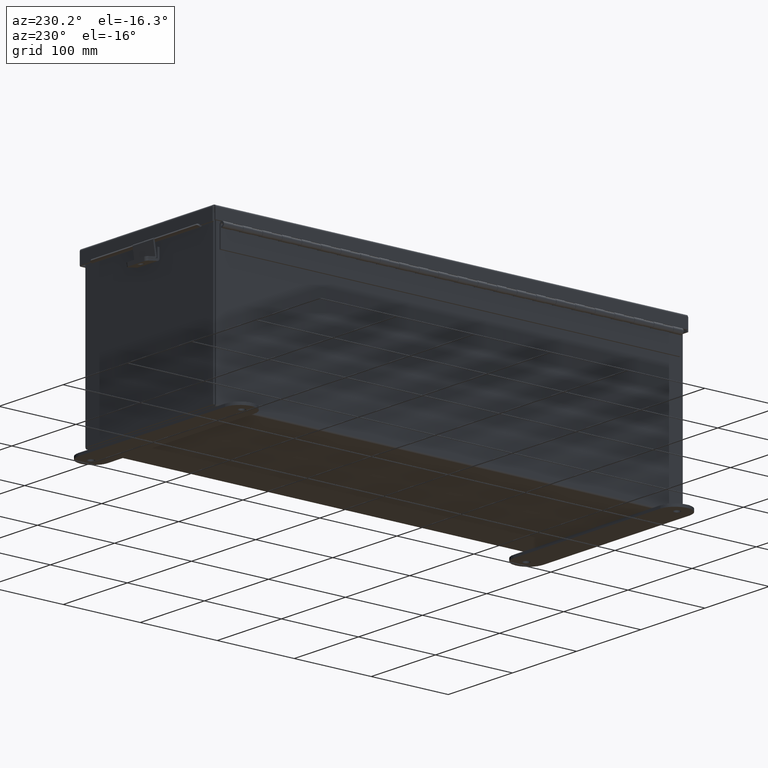
[diagram: clean part render]
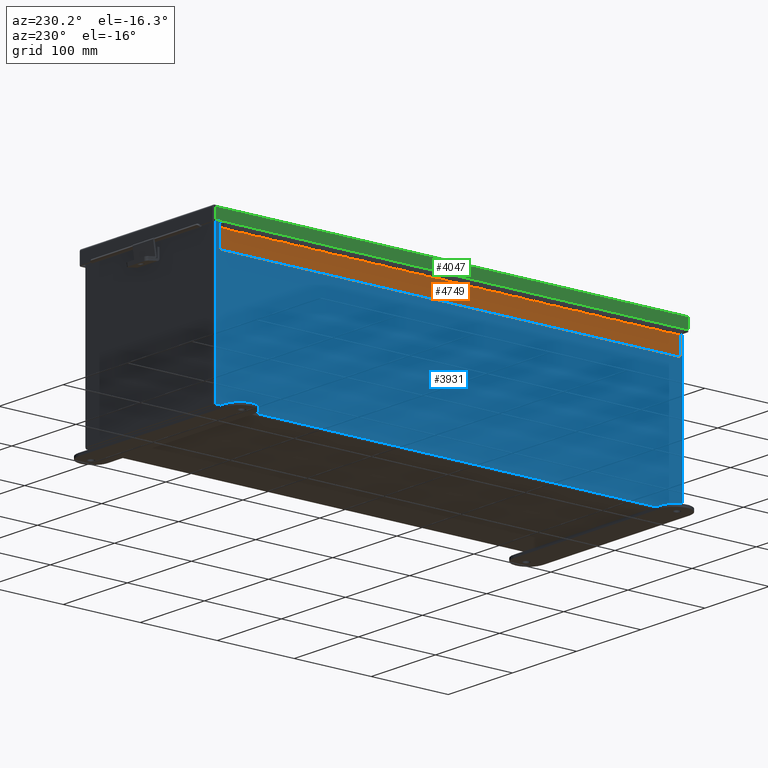
[diagram: same view with three faces highlighted in distinct colors, each labeled with its STEP entity id]
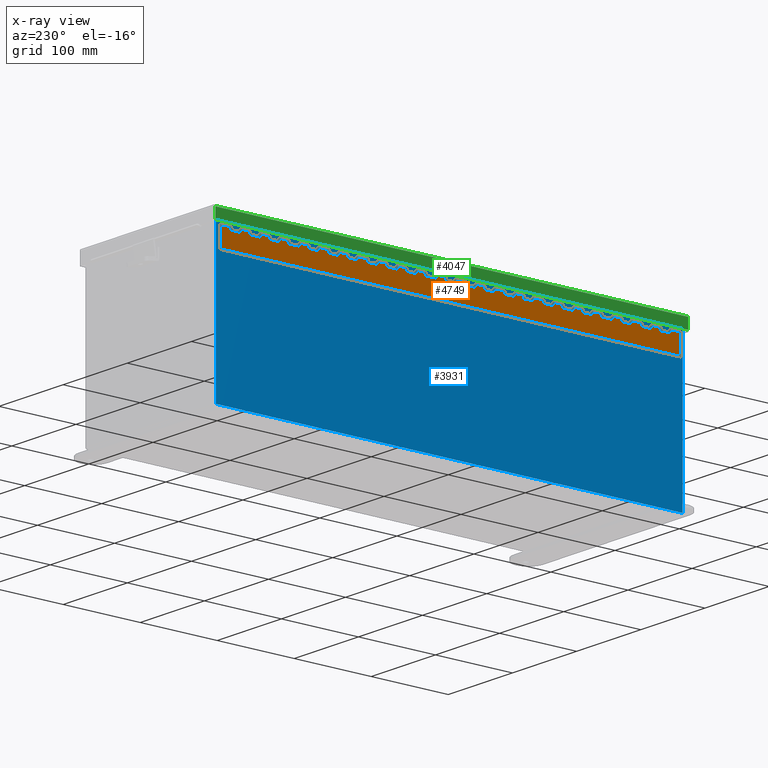
[diagram: x-ray of the same camera — body ghosted, the three highlighted faces saturated]
A machine part, auxiliary view with three faces highlighted in distinct colors.
The next image is the same camera in x-ray (body ghosted, the three faces saturated) — at least one of them is partly hidden behind the body in this view.
Their STEP definitions:

[orange] entity #4749 — the highlighted planar face has unit normal (1, -0, 0).
#64 = CARTESIAN_POINT ( 'NONE',  ( 0.1365000000000000400, 8.499999999999994700, 0.0000000000000000000 ) ) ;
#69 = VECTOR ( 'NONE', #8988, 39.37007874015748100 ) ;
#82 = VERTEX_POINT ( 'NONE', #14597 ) ;
#97 = LINE ( 'NONE', #10614, #5798 ) ;
#122 = CARTESIAN_POINT ( 'NONE',  ( 0.1365000000000153300, 15.49999999999999300, 0.0000000000000000000 ) ) ;
#140 = CARTESIAN_POINT ( 'NONE',  ( 0.0000000000000000000, 16.49999999999999300, 0.0000000000000000000 ) ) ;
#142 = VERTEX_POINT ( 'NONE', #6284 ) ;
#173 = CARTESIAN_POINT ( 'NONE',  ( 0.1365000000000000400, 20.49999999999999300, 0.0000000000000000000 ) ) ;
#176 = VECTOR ( 'NONE', #19415, 39.37007874015748100 ) ;
#213 = VERTEX_POINT ( 'NONE', #6119 ) ;
#246 = EDGE_CURVE ( 'NONE', #6377, #8545, #11852, .T. ) ;
#284 = LINE ( 'NONE', #14793, #13211 ) ;
#353 = LINE ( 'NONE', #15227, #9592 ) ;
#361 = CARTESIAN_POINT ( 'NONE',  ( 0.2730000000000000800, 18.49999999999999300, 0.0000000000000000000 ) ) ;
#372 = VECTOR ( 'NONE', #19333, 39.37007874015748100 ) ;
#385 = DIRECTION ( 'NONE',  ( -1.000000000000000000, 1.092695613247542100E-028, 3.549874073494553100E-029 ) ) ;
#416 = VECTOR ( 'NONE', #12227, 39.37007874015748100 ) ;
#436 = CARTESIAN_POINT ( 'NONE',  ( 0.1365000000000164100, 1.999999999999994000, 0.0000000000000000000 ) ) ;
#464 = PLANE ( 'NONE',  #1499 ) ;
#480 = EDGE_CURVE ( 'NONE', #6726, #14523, #21386, .T. ) ;
#508 = CARTESIAN_POINT ( 'NONE',  ( 0.1365000000000000400, 17.49999999999999300, 0.0000000000000000000 ) ) ;
#549 = CARTESIAN_POINT ( 'NONE',  ( 0.1365000000000000400, 0.0000000000000000000, 0.0000000000000000000 ) ) ;
#624 = CARTESIAN_POINT ( 'NONE',  ( 0.1365000000000000400, 0.0000000000000000000, 0.0000000000000000000 ) ) ;
#691 = CARTESIAN_POINT ( 'NONE',  ( 0.1365000000000000400, 0.0000000000000000000, 0.0000000000000000000 ) ) ;
#697 = CARTESIAN_POINT ( 'NONE',  ( 0.1365000000000000400, 5.499999999999992900, 0.0000000000000000000 ) ) ;
#736 = CARTESIAN_POINT ( 'NONE',  ( 0.1365000000000000400, 0.0000000000000000000, 0.0000000000000000000 ) ) ;
#768 = VECTOR ( 'NONE', #8256, 39.37007874015748100 ) ;
#806 = VERTEX_POINT ( 'NONE', #19252 ) ;
#838 = DIRECTION ( 'NONE',  ( -1.000000000000000000, 1.092695613247542100E-028, 3.549874073494553100E-029 ) ) ;
#839 = CARTESIAN_POINT ( 'NONE',  ( 0.2730000000000000800, 15.99999999999999500, 0.0000000000000000000 ) ) ;
#964 = LINE ( 'NONE', #13564, #9919 ) ;
#1057 = CARTESIAN_POINT ( 'NONE',  ( 0.2730000000000164500, -8.000000000000007100, 0.0000000000000000000 ) ) ;
#1060 = CARTESIAN_POINT ( 'NONE',  ( 0.0000000000000000000, 8.999999999999992900, -8.195543980992789300E-015 ) ) ;
#1078 = LINE ( 'NONE', #4441, #15614 ) ;
#1081 = ORIENTED_EDGE ( 'NONE', *, *, #18531, .F. ) ;
#1103 = CARTESIAN_POINT ( 'NONE',  ( 1.639108796198557900E-014, 23.50000000000000000, 0.0000000000000000000 ) ) ;
#1136 = LINE ( 'NONE', #13498, #5729 ) ;
#1176 = LINE ( 'NONE', #20445, #10396 ) ;
#1177 = ORIENTED_EDGE ( 'NONE', *, *, #2574, .F. ) ;
#1215 = VERTEX_POINT ( 'NONE', #6617 ) ;
#1223 = LINE ( 'NONE', #15170, #13632 ) ;
#1338 = VECTOR ( 'NONE', #13286, 39.37007874015748100 ) ;
#1344 = ORIENTED_EDGE ( 'NONE', *, *, #2249, .F. ) ;
#1384 = VERTEX_POINT ( 'NONE', #9036 ) ;
#1418 = VERTEX_POINT ( 'NONE', #10657 ) ;
#1427 = EDGE_CURVE ( 'NONE', #7899, #213, #19692, .T. ) ;
#1460 = ORIENTED_EDGE ( 'NONE', *, *, #14456, .T. ) ;
#1499 = AXIS2_PLACEMENT_3D ( 'NONE', #5827, #21217, #9137 ) ;
#1535 = CARTESIAN_POINT ( 'NONE',  ( 1.639108796198557900E-014, 21.49999999999999300, 0.0000000000000000000 ) ) ;
#1553 = DIRECTION ( 'NONE',  ( -1.092695613247542100E-028, 1.000000000000000000, -1.461323557691785800E-030 ) ) ;
#1562 = EDGE_CURVE ( 'NONE', #18761, #17430, #17220, .T. ) ;
#1581 = LINE ( 'NONE', #15708, #17419 ) ;
#1588 = DIRECTION ( 'NONE',  ( -1.000000000000000000, 1.092695613247542100E-028, 3.549874073494553100E-029 ) ) ;
#1607 = EDGE_CURVE ( 'NONE', #11091, #10116, #12971, .T. ) ;
#1644 = CARTESIAN_POINT ( 'NONE',  ( 1.639108796198557900E-014, 14.99999999999999500, -8.195543980992789300E-015 ) ) ;
#1684 = DIRECTION ( 'NONE',  ( -1.000000000000000000, 1.092695613247542100E-028, 3.549874073494553100E-029 ) ) ;
#1689 = LINE ( 'NONE', #16964, #8465 ) ;
#1693 = LINE ( 'NONE', #15597, #4971 ) ;
#1697 = DIRECTION ( 'NONE',  ( -1.092695613247542100E-028, 1.000000000000000000, -1.461323557691785800E-030 ) ) ;
#1763 = EDGE_CURVE ( 'NONE', #2740, #12979, #3215, .T. ) ;
#1768 = DIRECTION ( 'NONE',  ( -1.000000000000000000, 1.092695613247542100E-028, 3.549874073494553100E-029 ) ) ;
#1782 = VECTOR ( 'NONE', #17016, 39.37007874015748100 ) ;
#1876 = EDGE_CURVE ( 'NONE', #1215, #13852, #19978, .T. ) ;
#1877 = LINE ( 'NONE', #14440, #1338 ) ;
#1889 = DIRECTION ( 'NONE',  ( -1.092695613247542100E-028, 1.000000000000000000, -1.461323557691785800E-030 ) ) ;
#1895 = DIRECTION ( 'NONE',  ( 1.000000000000000000, -1.092695613247542100E-028, -3.549874073494553100E-029 ) ) ;
#1956 = LINE ( 'NONE', #14778, #20900 ) ;
#2027 = ORIENTED_EDGE ( 'NONE', *, *, #10145, .T. ) ;
#2034 = EDGE_CURVE ( 'NONE', #16333, #9048, #284, .T. ) ;
#2067 = ORIENTED_EDGE ( 'NONE', *, *, #17746, .F. ) ;
#2090 = CARTESIAN_POINT ( 'NONE',  ( 0.0000000000000000000, 18.99999999999999300, -8.195543980992789300E-015 ) ) ;
#2143 = ORIENTED_EDGE ( 'NONE', *, *, #13697, .F. ) ;
#2164 = CARTESIAN_POINT ( 'NONE',  ( 0.1365000000000164100, 13.49999999999999100, 0.0000000000000000000 ) ) ;
#2190 = CARTESIAN_POINT ( 'NONE',  ( 0.1365000000000164100, 4.499999999999989300, 0.0000000000000000000 ) ) ;
#2204 = VERTEX_POINT ( 'NONE', #839 ) ;
#2230 = ORIENTED_EDGE ( 'NONE', *, *, #6541, .T. ) ;
#2244 = LINE ( 'NONE', #20148, #8245 ) ;
#2249 = EDGE_CURVE ( 'NONE', #13421, #2204, #8835, .T. ) ;
#2265 = ORIENTED_EDGE ( 'NONE', *, *, #4333, .F. ) ;
#2344 = CARTESIAN_POINT ( 'NONE',  ( 0.0000000000000000000, 16.99999999999999300, -8.195543980992789300E-015 ) ) ;
#2363 = VECTOR ( 'NONE', #4260, 39.37007874015748100 ) ;
#2388 = ORIENTED_EDGE ( 'NONE', *, *, #16716, .F. ) ;
#2408 = ORIENTED_EDGE ( 'NONE', *, *, #6149, .F. ) ;
#2415 = VECTOR ( 'NONE', #8428, 39.37007874015748100 ) ;
#2446 = DIRECTION ( 'NONE',  ( -1.000000000000000000, 1.092695613247542100E-028, 3.549874073494553100E-029 ) ) ;
#2495 = ORIENTED_EDGE ( 'NONE', *, *, #16526, .T. ) ;
#2574 = EDGE_CURVE ( 'NONE', #12581, #18870, #7338, .T. ) ;
#2632 = LINE ( 'NONE', #16900, #22179 ) ;
#2642 = EDGE_CURVE ( 'NONE', #17430, #18848, #12478, .T. ) ;
#2647 = VERTEX_POINT ( 'NONE', #3605 ) ;
#2657 = VECTOR ( 'NONE', #8795, 39.37007874015748100 ) ;
#2667 = LINE ( 'NONE', #13589, #8458 ) ;
#2674 = ORIENTED_EDGE ( 'NONE', *, *, #13455, .F. ) ;
#2700 = LINE ( 'NONE', #9384, #2415 ) ;
#2711 = ORIENTED_EDGE ( 'NONE', *, *, #1763, .F. ) ;
#2718 = EDGE_CURVE ( 'NONE', #13195, #7772, #2700, .T. ) ;
#2731 = CARTESIAN_POINT ( 'NONE',  ( 1.639108796198557900E-014, 22.49999999999999300, 0.0000000000000000000 ) ) ;
#2740 = VERTEX_POINT ( 'NONE', #22434 ) ;
#2757 = EDGE_CURVE ( 'NONE', #10116, #12574, #4676, .T. ) ;
#2846 = VECTOR ( 'NONE', #17568, 39.37007874015748100 ) ;
#2849 = ORIENTED_EDGE ( 'NONE', *, *, #17279, .F. ) ;
#2943 = CARTESIAN_POINT ( 'NONE',  ( 0.0000000000000000000, 9.999999999999996400, 0.0000000000000000000 ) ) ;
#2959 = EDGE_CURVE ( 'NONE', #8545, #9803, #12512, .T. ) ;
#3032 = EDGE_CURVE ( 'NONE', #4660, #19660, #17089, .T. ) ;
#3121 = ORIENTED_EDGE ( 'NONE', *, *, #6815, .F. ) ;
#3137 = CARTESIAN_POINT ( 'NONE',  ( 0.2730000000000000800, 9.999999999999996400, 0.0000000000000000000 ) ) ;
#3149 = LINE ( 'NONE', #1535, #19903 ) ;
#3190 = ORIENTED_EDGE ( 'NONE', *, *, #10207, .T. ) ;
#3194 = CARTESIAN_POINT ( 'NONE',  ( 0.1365000000000000400, 7.999999999999993800, 0.0000000000000000000 ) ) ;
#3204 = ORIENTED_EDGE ( 'NONE', *, *, #3234, .F. ) ;
#3215 = LINE ( 'NONE', #9016, #768 ) ;
#3234 = EDGE_CURVE ( 'NONE', #14523, #17726, #3268, .T. ) ;
#3268 = LINE ( 'NONE', #2344, #13601 ) ;
#3445 = FACE_OUTER_BOUND ( 'NONE', #21237, .T. ) ;
#3491 = CARTESIAN_POINT ( 'NONE',  ( 0.2730000000000000800, -12.00000000000000400, 0.0000000000000000000 ) ) ;
#3504 = ORIENTED_EDGE ( 'NONE', *, *, #21341, .F. ) ;
#3532 = ORIENTED_EDGE ( 'NONE', *, *, #6264, .F. ) ;
#3541 = ORIENTED_EDGE ( 'NONE', *, *, #11002, .T. ) ;
#3565 = DIRECTION ( 'NONE',  ( -1.000000000000000000, 1.092695613247542100E-028, 3.549874073494553100E-029 ) ) ;
#3571 = VECTOR ( 'NONE', #16884, 39.37007874015748100 ) ;
#3605 = CARTESIAN_POINT ( 'NONE',  ( 0.2730000000000000800, 6.999999999999993800, 0.0000000000000000000 ) ) ;
#3606 = CARTESIAN_POINT ( 'NONE',  ( 0.2730000000000000800, -0.9999999999999992200, 0.0000000000000000000 ) ) ;
#3636 = CARTESIAN_POINT ( 'NONE',  ( 0.2730000000000164500, 13.49999999999999100, 0.0000000000000000000 ) ) ;
#3651 = EDGE_CURVE ( 'NONE', #20139, #6377, #9357, .T. ) ;
#3677 = EDGE_CURVE ( 'NONE', #5432, #12581, #10662, .T. ) ;
#3782 = DIRECTION ( 'NONE',  ( -1.092695613247542100E-028, 1.000000000000000000, -1.461323557691785800E-030 ) ) ;
#3786 = CARTESIAN_POINT ( 'NONE',  ( 0.1365000000000164100, 3.499999999999995100, 0.0000000000000000000 ) ) ;
#3801 = DIRECTION ( 'NONE',  ( -1.092695613247542100E-028, 1.000000000000000000, -1.461323557691785800E-030 ) ) ;
#3804 = DIRECTION ( 'NONE',  ( -1.092695613247542100E-028, 1.000000000000000000, -1.461323557691785800E-030 ) ) ;
#3930 = CARTESIAN_POINT ( 'NONE',  ( 0.1365000000000000400, 0.0000000000000000000, 0.0000000000000000000 ) ) ;
#3950 = CARTESIAN_POINT ( 'NONE',  ( 0.1365000000000000400, 19.99999999999999300, 0.0000000000000000000 ) ) ;
#4031 = DIRECTION ( 'NONE',  ( -1.000000000000000000, 1.092695613247542100E-028, 3.549874073494553100E-029 ) ) ;
#4055 = VERTEX_POINT ( 'NONE', #4364 ) ;
#4058 = CARTESIAN_POINT ( 'NONE',  ( 0.2730000000000153400, 14.99999999999999500, 0.0000000000000000000 ) ) ;
#4076 = VECTOR ( 'NONE', #4516, 39.37007874015748100 ) ;
#4093 = EDGE_CURVE ( 'NONE', #12122, #17440, #97, .T. ) ;
#4109 = CARTESIAN_POINT ( 'NONE',  ( 0.1365000000000000400, 17.99999999999999300, 0.0000000000000000000 ) ) ;
#4168 = CARTESIAN_POINT ( 'NONE',  ( 0.2730000000000164500, -10.00000000000000500, 0.0000000000000000000 ) ) ;
#4198 = CARTESIAN_POINT ( 'NONE',  ( 0.2730000000000164500, 22.99999999999999300, 0.0000000000000000000 ) ) ;
#4200 = ORIENTED_EDGE ( 'NONE', *, *, #13967, .F. ) ;
#4235 = LINE ( 'NONE', #8002, #8862 ) ;
#4260 = DIRECTION ( 'NONE',  ( -1.000000000000000000, 1.092695613247542100E-028, 3.549874073494553100E-029 ) ) ;
#4262 = VECTOR ( 'NONE', #3565, 39.37007874015748100 ) ;
#4269 = ORIENTED_EDGE ( 'NONE', *, *, #15696, .F. ) ;
#4290 = DIRECTION ( 'NONE',  ( -1.000000000000000000, 1.092695613247542100E-028, 3.549874073494553100E-029 ) ) ;
#4300 = ORIENTED_EDGE ( 'NONE', *, *, #2959, .F. ) ;
#4330 = LINE ( 'NONE', #7109, #14069 ) ;
#4333 = EDGE_CURVE ( 'NONE', #7772, #17748, #13802, .T. ) ;
#4364 = CARTESIAN_POINT ( 'NONE',  ( 0.2730000000000164500, 3.499999999999995100, 0.0000000000000000000 ) ) ;
#4422 = ORIENTED_EDGE ( 'NONE', *, *, #2718, .F. ) ;
#4437 = VECTOR ( 'NONE', #3782, 39.37007874015748100 ) ;
#4441 = CARTESIAN_POINT ( 'NONE',  ( 0.0000000000000000000, 20.49999999999999300, 0.0000000000000000000 ) ) ;
#4461 = CARTESIAN_POINT ( 'NONE',  ( 1.639108796198557900E-014, 0.4999999999999930100, 0.0000000000000000000 ) ) ;
#4468 = DIRECTION ( 'NONE',  ( -1.092695613247542100E-028, 1.000000000000000000, -1.461323557691785800E-030 ) ) ;
#4487 = EDGE_CURVE ( 'NONE', #10140, #8252, #12542, .T. ) ;
#4494 = ORIENTED_EDGE ( 'NONE', *, *, #2642, .F. ) ;
#4497 = VERTEX_POINT ( 'NONE', #12790 ) ;
#4516 = DIRECTION ( 'NONE',  ( -5.812442539820472100E-018, 1.000000000000000000, -1.482238588045286000E-030 ) ) ;
#4591 = LINE ( 'NONE', #4168, #10325 ) ;
#4611 = EDGE_CURVE ( 'NONE', #15923, #22085, #14534, .T. ) ;
#4613 = DIRECTION ( 'NONE',  ( -1.000000000000000000, 1.092695613247542100E-028, 3.549874073494553100E-029 ) ) ;
#4646 = DIRECTION ( 'NONE',  ( -1.092695613247542100E-028, 1.000000000000000000, -1.461323557691785800E-030 ) ) ;
#4660 = VERTEX_POINT ( 'NONE', #4920 ) ;
#4668 = VECTOR ( 'NONE', #11496, 39.37007874015748100 ) ;
#4676 = LINE ( 'NONE', #691, #15437 ) ;
#4749 = ADVANCED_FACE ( 'NONE', ( #3445 ), #464, .F. ) ;
#4756 = EDGE_CURVE ( 'NONE', #4055, #13852, #7247, .T. ) ;
#4758 = DIRECTION ( 'NONE',  ( -1.092695613247542100E-028, 1.000000000000000000, -1.461323557691785800E-030 ) ) ;
#4783 = LINE ( 'NONE', #5046, #11593 ) ;
#4784 = VERTEX_POINT ( 'NONE', #19951 ) ;
#4788 = EDGE_CURVE ( 'NONE', #5840, #16651, #10560, .T. ) ;
#4822 = ORIENTED_EDGE ( 'NONE', *, *, #13058, .F. ) ;
#4862 = ORIENTED_EDGE ( 'NONE', *, *, #18595, .F. ) ;
#4866 = EDGE_CURVE ( 'NONE', #142, #14812, #12724, .T. ) ;
#4901 = DIRECTION ( 'NONE',  ( -1.000000000000000000, 1.092695613247542100E-028, 3.549874073494553100E-029 ) ) ;
#4920 = CARTESIAN_POINT ( 'NONE',  ( 0.2730000000000164500, 22.49999999999999300, 0.0000000000000000000 ) ) ;
#4949 = VERTEX_POINT ( 'NONE', #7001 ) ;
#4959 = ORIENTED_EDGE ( 'NONE', *, *, #18869, .F. ) ;
#4971 = VECTOR ( 'NONE', #17108, 39.37007874015748100 ) ;
#4986 = VERTEX_POINT ( 'NONE', #15948 ) ;
#5001 = ORIENTED_EDGE ( 'NONE', *, *, #13369, .F. ) ;
#5024 = VERTEX_POINT ( 'NONE', #5876 ) ;
#5046 = CARTESIAN_POINT ( 'NONE',  ( 0.2730000000000000800, -15.00000000000000500, 0.0000000000000000000 ) ) ;
#5126 = ORIENTED_EDGE ( 'NONE', *, *, #1427, .F. ) ;
#5127 = ORIENTED_EDGE ( 'NONE', *, *, #9097, .F. ) ;
#5166 = CARTESIAN_POINT ( 'NONE',  ( 0.1365000000000000400, 5.999999999999994700, 0.0000000000000000000 ) ) ;
#5248 = CARTESIAN_POINT ( 'NONE',  ( 0.0000000000000000000, 6.999999999999993800, -8.195543980992789300E-015 ) ) ;
#5254 = VECTOR ( 'NONE', #10109, 39.37007874015748100 ) ;
#5289 = VERTEX_POINT ( 'NONE', #7652 ) ;
#5290 = DIRECTION ( 'NONE',  ( -1.000000000000000000, 1.092695613247542100E-028, 3.549874073494553100E-029 ) ) ;
#5306 = EDGE_CURVE ( 'NONE', #18761, #22085, #20410, .T. ) ;
#5338 = CARTESIAN_POINT ( 'NONE',  ( 1.639108796198557900E-014, 4.999999999999995600, -8.195543980992789300E-015 ) ) ;
#5386 = CARTESIAN_POINT ( 'NONE',  ( 0.2730000000000164500, 12.49999999999999100, 0.0000000000000000000 ) ) ;
#5412 = EDGE_CURVE ( 'NONE', #4784, #18957, #17411, .T. ) ;
#5432 = VERTEX_POINT ( 'NONE', #10126 ) ;
#5440 = CARTESIAN_POINT ( 'NONE',  ( 0.1365000000000000400, 8.999999999999992900, 0.0000000000000000000 ) ) ;
#5445 = EDGE_CURVE ( 'NONE', #1418, #8551, #9898, .T. ) ;
#5492 = VECTOR ( 'NONE', #6345, 39.37007874015748100 ) ;
#5586 = CARTESIAN_POINT ( 'NONE',  ( 0.1365000000000164100, 2.499999999999991600, 0.0000000000000000000 ) ) ;
#5588 = CARTESIAN_POINT ( 'NONE',  ( 0.2730000000000164500, 11.99999999999999500, 0.0000000000000000000 ) ) ;
#5640 = CARTESIAN_POINT ( 'NONE',  ( 0.1365000000000000400, 16.99999999999999300, 0.0000000000000000000 ) ) ;
#5667 = LINE ( 'NONE', #22358, #15523 ) ;
#5697 = CARTESIAN_POINT ( 'NONE',  ( 0.1365000000000000400, 7.499999999999992000, 0.0000000000000000000 ) ) ;
#5729 = VECTOR ( 'NONE', #1588, 39.37007874015748100 ) ;
#5735 = LINE ( 'NONE', #20140, #14120 ) ;
#5798 = VECTOR ( 'NONE', #4646, 39.37007874015748100 ) ;
#5809 = VECTOR ( 'NONE', #13760, 39.37007874015748100 ) ;
#5827 = CARTESIAN_POINT ( 'NONE',  ( 1.136500000000015600, 23.50000000000000000, 0.0000000000000000000 ) ) ;
#5840 = VERTEX_POINT ( 'NONE', #20705 ) ;
#5864 = ORIENTED_EDGE ( 'NONE', *, *, #15512, .T. ) ;
#5871 = VECTOR ( 'NONE', #15224, 39.37007874015748100 ) ;
#5876 = CARTESIAN_POINT ( 'NONE',  ( 0.1365000000000164100, 1.499999999999992200, 0.0000000000000000000 ) ) ;
#5894 = VERTEX_POINT ( 'NONE', #4109 ) ;
#5932 = DIRECTION ( 'NONE',  ( -1.092695613247542100E-028, 1.000000000000000000, -1.461323557691785800E-030 ) ) ;
#5971 = ORIENTED_EDGE ( 'NONE', *, *, #20357, .F. ) ;
#6119 = CARTESIAN_POINT ( 'NONE',  ( 0.1365000000000164100, 13.99999999999999300, 0.0000000000000000000 ) ) ;
#6122 = CARTESIAN_POINT ( 'NONE',  ( 0.1365000000000000400, 0.0000000000000000000, 0.0000000000000000000 ) ) ;
#6149 = EDGE_CURVE ( 'NONE', #7129, #14373, #22246, .T. ) ;
#6199 = CARTESIAN_POINT ( 'NONE',  ( 0.1365000000000000400, 9.999999999999996400, 0.0000000000000000000 ) ) ;
#6223 = LINE ( 'NONE', #1060, #21473 ) ;
#6240 = VECTOR ( 'NONE', #11345, 39.37007874015748100 ) ;
#6264 = EDGE_CURVE ( 'NONE', #18646, #21707, #14766, .T. ) ;
#6284 = CARTESIAN_POINT ( 'NONE',  ( 0.2730000000000164500, 21.99999999999999600, 0.0000000000000000000 ) ) ;
#6292 = ORIENTED_EDGE ( 'NONE', *, *, #20484, .F. ) ;
#6345 = DIRECTION ( 'NONE',  ( -1.000000000000000000, 1.092695613247542100E-028, 3.549874073494553100E-029 ) ) ;
#6350 = LINE ( 'NONE', #15877, #17972 ) ;
#6377 = VERTEX_POINT ( 'NONE', #6667 ) ;
#6455 = CARTESIAN_POINT ( 'NONE',  ( 1.639108796198557900E-014, 2.999999999999993300, -8.195543980992789300E-015 ) ) ;
#6480 = DIRECTION ( 'NONE',  ( -1.092695613247542100E-028, 1.000000000000000000, -1.461323557691785800E-030 ) ) ;
#6516 = VERTEX_POINT ( 'NONE', #5166 ) ;
#6526 = CARTESIAN_POINT ( 'NONE',  ( 0.2730000000000000800, 10.49999999999999300, 0.0000000000000000000 ) ) ;
#6532 = DIRECTION ( 'NONE',  ( -1.092695613247542100E-028, 1.000000000000000000, -1.461323557691785800E-030 ) ) ;
#6534 = VERTEX_POINT ( 'NONE', #4058 ) ;
#6541 = EDGE_CURVE ( 'NONE', #7200, #4949, #16082, .T. ) ;
#6603 = EDGE_CURVE ( 'NONE', #10521, #17692, #6223, .T. ) ;
#6617 = CARTESIAN_POINT ( 'NONE',  ( 0.1365000000000164100, 2.999999999999993300, 0.0000000000000000000 ) ) ;
#6640 = LINE ( 'NONE', #16666, #14999 ) ;
#6653 = ORIENTED_EDGE ( 'NONE', *, *, #19711, .T. ) ;
#6667 = CARTESIAN_POINT ( 'NONE',  ( 0.2730000000000000800, 19.99999999999999300, 0.0000000000000000000 ) ) ;
#6690 = ORIENTED_EDGE ( 'NONE', *, *, #480, .F. ) ;
#6723 = VERTEX_POINT ( 'NONE', #16384 ) ;
#6726 = VERTEX_POINT ( 'NONE', #12374 ) ;
#6814 = DIRECTION ( 'NONE',  ( -1.092695613247542100E-028, 1.000000000000000000, -1.461323557691785800E-030 ) ) ;
#6815 = EDGE_CURVE ( 'NONE', #5894, #5289, #7104, .T. ) ;
#6846 = CARTESIAN_POINT ( 'NONE',  ( 0.2730000000000000800, 5.499999999999992900, 0.0000000000000000000 ) ) ;
#6852 = EDGE_CURVE ( 'NONE', #4986, #11904, #1689, .T. ) ;
#6857 = EDGE_CURVE ( 'NONE', #13168, #8551, #5667, .T. ) ;
#6927 = CARTESIAN_POINT ( 'NONE',  ( 1.639108796198557900E-014, 13.49999999999999100, 0.0000000000000000000 ) ) ;
#7001 = CARTESIAN_POINT ( 'NONE',  ( 1.136500000000015600, 23.50000000000000000, 0.0000000000000000000 ) ) ;
#7094 = CARTESIAN_POINT ( 'NONE',  ( 0.2730000000000000800, -11.00000000000000000, 0.0000000000000000000 ) ) ;
#7095 = ORIENTED_EDGE ( 'NONE', *, *, #3032, .T. ) ;
#7104 = LINE ( 'NONE', #15152, #18393 ) ;
#7109 = CARTESIAN_POINT ( 'NONE',  ( 0.1365000000000000400, 0.0000000000000000000, 0.0000000000000000000 ) ) ;
#7129 = VERTEX_POINT ( 'NONE', #21621 ) ;
#7163 = DIRECTION ( 'NONE',  ( -1.000000000000000000, 1.092695613247542100E-028, 3.549874073494553100E-029 ) ) ;
#7200 = VERTEX_POINT ( 'NONE', #14653 ) ;
#7243 = EDGE_CURVE ( 'NONE', #18848, #22148, #9286, .T. ) ;
#7247 = LINE ( 'NONE', #10427, #11573 ) ;
#7304 = ORIENTED_EDGE ( 'NONE', *, *, #8676, .T. ) ;
#7309 = CARTESIAN_POINT ( 'NONE',  ( 0.1365000000000000400, 0.0000000000000000000, 0.0000000000000000000 ) ) ;
#7338 = LINE ( 'NONE', #6122, #13748 ) ;
#7364 = CARTESIAN_POINT ( 'NONE',  ( 0.2730000000000164500, -20.00000000000000400, 0.0000000000000000000 ) ) ;
#7374 = VECTOR ( 'NONE', #15424, 39.37007874015748100 ) ;
#7383 = EDGE_CURVE ( 'NONE', #17748, #6723, #2632, .T. ) ;
#7403 = CARTESIAN_POINT ( 'NONE',  ( 0.0000000000000000000, 19.49999999999999300, 0.0000000000000000000 ) ) ;
#7424 = CARTESIAN_POINT ( 'NONE',  ( 0.2730000000000000800, -2.000000000000002700, 0.0000000000000000000 ) ) ;
#7464 = ORIENTED_EDGE ( 'NONE', *, *, #12803, .F. ) ;
#7503 = ORIENTED_EDGE ( 'NONE', *, *, #9739, .F. ) ;
#7518 = DIRECTION ( 'NONE',  ( -1.000000000000000000, 1.092695613247542100E-028, 3.549874073494553100E-029 ) ) ;
#7652 = CARTESIAN_POINT ( 'NONE',  ( 0.1365000000000000400, 18.49999999999999300, 0.0000000000000000000 ) ) ;
#7675 = VECTOR ( 'NONE', #1697, 39.37007874015748100 ) ;
#7701 = CARTESIAN_POINT ( 'NONE',  ( 1.639108796198557900E-014, 0.9999999999999947800, -8.195543980992789300E-015 ) ) ;
#7752 = VECTOR ( 'NONE', #6480, 39.37007874015748100 ) ;
#7772 = VERTEX_POINT ( 'NONE', #10327 ) ;
#7819 = VECTOR ( 'NONE', #3801, 39.37007874015748100 ) ;
#7824 = LINE ( 'NONE', #2943, #9794 ) ;
#7828 = VERTEX_POINT ( 'NONE', #18986 ) ;
#7899 = VERTEX_POINT ( 'NONE', #17371 ) ;
#7904 = CARTESIAN_POINT ( 'NONE',  ( 0.2730000000000000800, 17.49999999999999300, 0.0000000000000000000 ) ) ;
#7952 = CARTESIAN_POINT ( 'NONE',  ( 0.0000000000000000000, 5.999999999999994700, 0.0000000000000000000 ) ) ;
#7966 = EDGE_CURVE ( 'NONE', #16719, #7200, #1581, .T. ) ;
#8002 = CARTESIAN_POINT ( 'NONE',  ( 0.0000000000000000000, 9.499999999999989300, 0.0000000000000000000 ) ) ;
#8039 = LINE ( 'NONE', #3491, #2846 ) ;
#8111 = VERTEX_POINT ( 'NONE', #21910 ) ;
#8132 = VECTOR ( 'NONE', #6532, 39.37007874015748100 ) ;
#8143 = ORIENTED_EDGE ( 'NONE', *, *, #7383, .F. ) ;
#8154 = DIRECTION ( 'NONE',  ( -1.000000000000000000, 1.092695613247542100E-028, 3.549874073494553100E-029 ) ) ;
#8161 = CARTESIAN_POINT ( 'NONE',  ( 1.639108796198557900E-014, 12.49999999999999100, 0.0000000000000000000 ) ) ;
#8217 = ORIENTED_EDGE ( 'NONE', *, *, #12317, .F. ) ;
#8245 = VECTOR ( 'NONE', #20283, 39.37007874015748100 ) ;
#8252 = VERTEX_POINT ( 'NONE', #2164 ) ;
#8256 = DIRECTION ( 'NONE',  ( -1.000000000000000000, 1.092695613247542100E-028, 3.549874073494553100E-029 ) ) ;
#8330 = ORIENTED_EDGE ( 'NONE', *, *, #10059, .F. ) ;
#8348 = LINE ( 'NONE', #14816, #4262 ) ;
#8373 = CARTESIAN_POINT ( 'NONE',  ( 0.1365000000000000400, 0.0000000000000000000, 0.0000000000000000000 ) ) ;
#8399 = LINE ( 'NONE', #10023, #4668 ) ;
#8428 = DIRECTION ( 'NONE',  ( -1.092695613247542100E-028, 1.000000000000000000, -1.461323557691785800E-030 ) ) ;
#8458 = VECTOR ( 'NONE', #2446, 39.37007874015748100 ) ;
#8465 = VECTOR ( 'NONE', #4901, 39.37007874015748100 ) ;
#8489 = LINE ( 'NONE', #18480, #22349 ) ;
#8510 = LINE ( 'NONE', #3930, #372 ) ;
#8545 = VERTEX_POINT ( 'NONE', #3950 ) ;
#8551 = VERTEX_POINT ( 'NONE', #5697 ) ;
#8604 = ORIENTED_EDGE ( 'NONE', *, *, #18053, .F. ) ;
#8676 = EDGE_CURVE ( 'NONE', #11743, #12574, #10040, .T. ) ;
#8709 = VERTEX_POINT ( 'NONE', #508 ) ;
#8728 = VERTEX_POINT ( 'NONE', #6526 ) ;
#8768 = LINE ( 'NONE', #15378, #7675 ) ;
#8776 = DIRECTION ( 'NONE',  ( -1.092695613247542100E-028, 1.000000000000000000, -1.461323557691785800E-030 ) ) ;
#8795 = DIRECTION ( 'NONE',  ( -1.092695613247542100E-028, 1.000000000000000000, -1.461323557691785800E-030 ) ) ;
#8835 = LINE ( 'NONE', #16622, #11280 ) ;
#8847 = LINE ( 'NONE', #14755, #12344 ) ;
#8862 = VECTOR ( 'NONE', #15089, 39.37007874015748100 ) ;
#8947 = CARTESIAN_POINT ( 'NONE',  ( 0.2730000000000000800, 16.99999999999999300, 0.0000000000000000000 ) ) ;
#8971 = EDGE_CURVE ( 'NONE', #5840, #2647, #8768, .T. ) ;
#8979 = LINE ( 'NONE', #549, #18125 ) ;
#8986 = CARTESIAN_POINT ( 'NONE',  ( 0.2730000000000153400, -5.999999999999999100, 0.0000000000000000000 ) ) ;
#8988 = DIRECTION ( 'NONE',  ( -1.000000000000000000, 1.092695613247542100E-028, 3.549874073494553100E-029 ) ) ;
#8997 = EDGE_CURVE ( 'NONE', #10140, #7899, #2244, .T. ) ;
#9016 = CARTESIAN_POINT ( 'NONE',  ( 0.0000000000000000000, 20.99999999999999600, -8.195543980992789300E-015 ) ) ;
#9036 = CARTESIAN_POINT ( 'NONE',  ( 0.2730000000000000800, 5.999999999999994700, 0.0000000000000000000 ) ) ;
#9048 = VERTEX_POINT ( 'NONE', #14105 ) ;
#9082 = LINE ( 'NONE', #7309, #13135 ) ;
#9097 = EDGE_CURVE ( 'NONE', #2647, #1418, #14959, .T. ) ;
#9137 = DIRECTION ( 'NONE',  ( -1.000000000000000000, 1.092695613247542100E-028, 3.549874073494553100E-029 ) ) ;
#9158 = EDGE_CURVE ( 'NONE', #12083, #22326, #18191, .T. ) ;
#9163 = ORIENTED_EDGE ( 'NONE', *, *, #21801, .F. ) ;
#9168 = VECTOR ( 'NONE', #4758, 39.37007874015748100 ) ;
#9240 = EDGE_CURVE ( 'NONE', #15041, #2740, #21800, .T. ) ;
#9241 = ORIENTED_EDGE ( 'NONE', *, *, #19266, .F. ) ;
#9243 = EDGE_CURVE ( 'NONE', #806, #5024, #8510, .T. ) ;
#9267 = ORIENTED_EDGE ( 'NONE', *, *, #14803, .F. ) ;
#9270 = ORIENTED_EDGE ( 'NONE', *, *, #9567, .F. ) ;
#9284 = VERTEX_POINT ( 'NONE', #2190 ) ;
#9286 = LINE ( 'NONE', #21729, #6240 ) ;
#9315 = DIRECTION ( 'NONE',  ( -1.092695613247542100E-028, 1.000000000000000000, -1.461323557691785800E-030 ) ) ;
#9357 = LINE ( 'NONE', #15295, #10968 ) ;
#9383 = DIRECTION ( 'NONE',  ( -1.092695613247542100E-028, 1.000000000000000000, -1.461323557691785800E-030 ) ) ;
#9384 = CARTESIAN_POINT ( 'NONE',  ( 0.2730000000000000800, -4.000000000000000900, 0.0000000000000000000 ) ) ;
#9453 = CARTESIAN_POINT ( 'NONE',  ( 0.2730000000000000800, 20.49999999999999300, 0.0000000000000000000 ) ) ;
#9567 = EDGE_CURVE ( 'NONE', #8111, #20017, #9082, .T. ) ;
#9592 = VECTOR ( 'NONE', #14564, 39.37007874015748100 ) ;
#9739 = EDGE_CURVE ( 'NONE', #213, #16655, #10441, .T. ) ;
#9746 = LINE ( 'NONE', #1103, #12152 ) ;
#9755 = ORIENTED_EDGE ( 'NONE', *, *, #5306, .T. ) ;
#9760 = ORIENTED_EDGE ( 'NONE', *, *, #246, .F. ) ;
#9794 = VECTOR ( 'NONE', #14682, 39.37007874015748100 ) ;
#9800 = ORIENTED_EDGE ( 'NONE', *, *, #3677, .F. ) ;
#9803 = VERTEX_POINT ( 'NONE', #173 ) ;
#9837 = CARTESIAN_POINT ( 'NONE',  ( 0.1365000000000000400, 15.99999999999999500, 0.0000000000000000000 ) ) ;
#9898 = LINE ( 'NONE', #18965, #20269 ) ;
#9919 = VECTOR ( 'NONE', #16858, 39.37007874015748100 ) ;
#9938 = CARTESIAN_POINT ( 'NONE',  ( 0.2730000000000164500, 0.4999999999999930100, 0.0000000000000000000 ) ) ;
#9958 = LINE ( 'NONE', #7403, #5871 ) ;
#10023 = CARTESIAN_POINT ( 'NONE',  ( 0.1365000000000000400, 0.0000000000000000000, 0.0000000000000000000 ) ) ;
#10040 = LINE ( 'NONE', #19863, #19928 ) ;
#10059 = EDGE_CURVE ( 'NONE', #8728, #82, #8039, .T. ) ;
#10076 = ORIENTED_EDGE ( 'NONE', *, *, #18657, .F. ) ;
#10109 = DIRECTION ( 'NONE',  ( -1.092695613247542100E-028, 1.000000000000000000, -1.461323557691785800E-030 ) ) ;
#10116 = VERTEX_POINT ( 'NONE', #17538 ) ;
#10126 = CARTESIAN_POINT ( 'NONE',  ( 0.2730000000000164500, 1.999999999999994000, 0.0000000000000000000 ) ) ;
#10140 = VERTEX_POINT ( 'NONE', #3636 ) ;
#10145 = EDGE_CURVE ( 'NONE', #13156, #11739, #3149, .T. ) ;
#10170 = DIRECTION ( 'NONE',  ( -1.092695613247542100E-028, 1.000000000000000000, -1.461323557691785800E-030 ) ) ;
#10207 = EDGE_CURVE ( 'NONE', #12122, #11625, #4235, .T. ) ;
#10280 = EDGE_CURVE ( 'NONE', #13168, #20713, #4783, .T. ) ;
#10325 = VECTOR ( 'NONE', #5932, 39.37007874015748100 ) ;
#10327 = CARTESIAN_POINT ( 'NONE',  ( 0.2730000000000000800, 18.99999999999999300, 0.0000000000000000000 ) ) ;
#10346 = VECTOR ( 'NONE', #8154, 39.37007874015748100 ) ;
#10364 = CARTESIAN_POINT ( 'NONE',  ( 0.1365000000000164100, 22.49999999999999300, 0.0000000000000000000 ) ) ;
#10396 = VECTOR ( 'NONE', #9383, 39.37007874015748100 ) ;
#10425 = CARTESIAN_POINT ( 'NONE',  ( 0.2730000000000000800, 7.999999999999993800, 0.0000000000000000000 ) ) ;
#10427 = CARTESIAN_POINT ( 'NONE',  ( 1.639108796198557900E-014, 3.499999999999995100, 0.0000000000000000000 ) ) ;
#10441 = LINE ( 'NONE', #624, #20159 ) ;
#10472 = EDGE_CURVE ( 'NONE', #21556, #5024, #8348, .T. ) ;
#10521 = VERTEX_POINT ( 'NONE', #15870 ) ;
#10560 = LINE ( 'NONE', #13108, #416 ) ;
#10614 = CARTESIAN_POINT ( 'NONE',  ( 0.2730000000000000800, -13.00000000000000700, 0.0000000000000000000 ) ) ;
#10646 = ORIENTED_EDGE ( 'NONE', *, *, #1876, .F. ) ;
#10657 = CARTESIAN_POINT ( 'NONE',  ( 0.1365000000000000400, 6.999999999999993800, 0.0000000000000000000 ) ) ;
#10662 = LINE ( 'NONE', #12881, #18830 ) ;
#10699 = CARTESIAN_POINT ( 'NONE',  ( 0.2730000000000164500, 2.499999999999991600, 0.0000000000000000000 ) ) ;
#10750 = VECTOR ( 'NONE', #15114, 39.37007874015748100 ) ;
#10782 = DIRECTION ( 'NONE',  ( -1.000000000000000000, 1.092695613247542400E-028, 3.549874073494553700E-029 ) ) ;
#10822 = CARTESIAN_POINT ( 'NONE',  ( 0.2730000000000000800, 7.499999999999992000, 0.0000000000000000000 ) ) ;
#10876 = ORIENTED_EDGE ( 'NONE', *, *, #4756, .T. ) ;
#10937 = CARTESIAN_POINT ( 'NONE',  ( 0.1365000000000000400, 18.99999999999999300, 0.0000000000000000000 ) ) ;
#10968 = VECTOR ( 'NONE', #20100, 39.37007874015748100 ) ;
#10973 = VECTOR ( 'NONE', #385, 39.37007874015748100 ) ;
#10990 = CARTESIAN_POINT ( 'NONE',  ( 0.1365000000000000400, 6.499999999999992000, 0.0000000000000000000 ) ) ;
#11002 = EDGE_CURVE ( 'NONE', #4949, #14373, #9746, .T. ) ;
#11017 = LINE ( 'NONE', #11383, #20936 ) ;
#11061 = DIRECTION ( 'NONE',  ( -1.000000000000000000, 1.092695613247542100E-028, 3.549874073494553100E-029 ) ) ;
#11091 = VERTEX_POINT ( 'NONE', #17064 ) ;
#11102 = CARTESIAN_POINT ( 'NONE',  ( 1.639108796198557900E-014, 11.49999999999999300, 0.0000000000000000000 ) ) ;
#11167 = VERTEX_POINT ( 'NONE', #5386 ) ;
#11171 = VECTOR ( 'NONE', #9315, 39.37007874015748100 ) ;
#11174 = LINE ( 'NONE', #14716, #15991 ) ;
#11183 = LINE ( 'NONE', #21218, #3571 ) ;
#11280 = VECTOR ( 'NONE', #3804, 39.37007874015748100 ) ;
#11345 = DIRECTION ( 'NONE',  ( -1.092695613247542100E-028, 1.000000000000000000, -1.461323557691785800E-030 ) ) ;
#11383 = CARTESIAN_POINT ( 'NONE',  ( 1.639108796198557900E-014, 22.99999999999999300, -8.195543980992789300E-015 ) ) ;
#11486 = VECTOR ( 'NONE', #838, 39.37007874015748100 ) ;
#11496 = DIRECTION ( 'NONE',  ( -1.092695613247542100E-028, 1.000000000000000000, -1.461323557691785800E-030 ) ) ;
#11573 = VECTOR ( 'NONE', #7518, 39.37007874015748100 ) ;
#11578 = CARTESIAN_POINT ( 'NONE',  ( 0.1365000000000000400, 20.99999999999999600, 0.0000000000000000000 ) ) ;
#11587 = CARTESIAN_POINT ( 'NONE',  ( 0.1365000000000000400, 0.0000000000000000000, 0.0000000000000000000 ) ) ;
#11593 = VECTOR ( 'NONE', #14449, 39.37007874015748100 ) ;
#11614 = LINE ( 'NONE', #11587, #20767 ) ;
#11620 = CARTESIAN_POINT ( 'NONE',  ( 0.1365000000000000400, 9.499999999999989300, 0.0000000000000000000 ) ) ;
#11625 = VERTEX_POINT ( 'NONE', #11620 ) ;
#11658 = VECTOR ( 'NONE', #15541, 39.37007874015748100 ) ;
#11739 = VERTEX_POINT ( 'NONE', #14013 ) ;
#11743 = VERTEX_POINT ( 'NONE', #6846 ) ;
#11852 = LINE ( 'NONE', #13175, #13425 ) ;
#11880 = LINE ( 'NONE', #1644, #2363 ) ;
#11904 = VERTEX_POINT ( 'NONE', #19594 ) ;
#11949 = CARTESIAN_POINT ( 'NONE',  ( 0.1365000000000000400, 0.0000000000000000000, 0.0000000000000000000 ) ) ;
#12048 = DIRECTION ( 'NONE',  ( -1.092695613247542100E-028, 1.000000000000000000, -1.461323557691785800E-030 ) ) ;
#12063 = CARTESIAN_POINT ( 'NONE',  ( 0.1365000000000164100, 21.99999999999999600, 0.0000000000000000000 ) ) ;
#12071 = DIRECTION ( 'NONE',  ( -1.000000000000000000, 1.092695613247542100E-028, 3.549874073494553100E-029 ) ) ;
#12083 = VERTEX_POINT ( 'NONE', #9938 ) ;
#12122 = VERTEX_POINT ( 'NONE', #20844 ) ;
#12128 = EDGE_CURVE ( 'NONE', #6516, #16651, #8979, .T. ) ;
#12152 = VECTOR ( 'NONE', #10782, 39.37007874015748100 ) ;
#12222 = CARTESIAN_POINT ( 'NONE',  ( 0.2730000000000000800, 0.0000000000000000000, 0.0000000000000000000 ) ) ;
#12227 = DIRECTION ( 'NONE',  ( -1.000000000000000000, 1.092695613247542100E-028, 3.549874073494553100E-029 ) ) ;
#12252 = ORIENTED_EDGE ( 'NONE', *, *, #1607, .F. ) ;
#12294 = DIRECTION ( 'NONE',  ( -1.000000000000000000, 1.092695613247542100E-028, 3.549874073494553100E-029 ) ) ;
#12317 = EDGE_CURVE ( 'NONE', #21707, #1215, #15685, .T. ) ;
#12326 = ORIENTED_EDGE ( 'NONE', *, *, #3651, .F. ) ;
#12344 = VECTOR ( 'NONE', #21832, 39.37007874015748100 ) ;
#12374 = CARTESIAN_POINT ( 'NONE',  ( 0.2730000000000000800, 16.49999999999999300, 0.0000000000000000000 ) ) ;
#12392 = VECTOR ( 'NONE', #21299, 39.37007874015748100 ) ;
#12478 = LINE ( 'NONE', #22170, #17244 ) ;
#12512 = LINE ( 'NONE', #11949, #18703 ) ;
#12542 = LINE ( 'NONE', #6927, #10346 ) ;
#12543 = DIRECTION ( 'NONE',  ( -1.000000000000000000, 1.092695613247542100E-028, 3.549874073494553100E-029 ) ) ;
#12574 = VERTEX_POINT ( 'NONE', #697 ) ;
#12581 = VERTEX_POINT ( 'NONE', #436 ) ;
#12613 = EDGE_CURVE ( 'NONE', #6726, #9048, #12788, .T. ) ;
#12651 = ORIENTED_EDGE ( 'NONE', *, *, #13962, .F. ) ;
#12686 = ORIENTED_EDGE ( 'NONE', *, *, #19355, .T. ) ;
#12724 = LINE ( 'NONE', #22447, #10973 ) ;
#12755 = DIRECTION ( 'NONE',  ( -1.092695613247542100E-028, 1.000000000000000000, -1.461323557691785800E-030 ) ) ;
#12788 = LINE ( 'NONE', #140, #13854 ) ;
#12790 = CARTESIAN_POINT ( 'NONE',  ( 0.2730000000000164500, 14.49999999999999300, 0.0000000000000000000 ) ) ;
#12803 = EDGE_CURVE ( 'NONE', #21556, #5432, #1956, .T. ) ;
#12833 = EDGE_CURVE ( 'NONE', #15485, #9284, #11183, .T. ) ;
#12874 = ORIENTED_EDGE ( 'NONE', *, *, #13614, .F. ) ;
#12880 = DIRECTION ( 'NONE',  ( -1.000000000000000000, 1.092695613247542100E-028, 3.549874073494553100E-029 ) ) ;
#12881 = CARTESIAN_POINT ( 'NONE',  ( 1.639108796198557900E-014, 1.999999999999994000, 0.0000000000000000000 ) ) ;
#12971 = LINE ( 'NONE', #5338, #17018 ) ;
#12979 = VERTEX_POINT ( 'NONE', #11578 ) ;
#13017 = CARTESIAN_POINT ( 'NONE',  ( 0.2730000000000000800, -14.00000000000000200, 0.0000000000000000000 ) ) ;
#13058 = EDGE_CURVE ( 'NONE', #11743, #1384, #1223, .T. ) ;
#13092 = VECTOR ( 'NONE', #4031, 39.37007874015748100 ) ;
#13108 = CARTESIAN_POINT ( 'NONE',  ( 0.0000000000000000000, 6.499999999999992000, 0.0000000000000000000 ) ) ;
#13135 = VECTOR ( 'NONE', #16536, 39.37007874015748100 ) ;
#13156 = VERTEX_POINT ( 'NONE', #17652 ) ;
#13168 = VERTEX_POINT ( 'NONE', #10822 ) ;
#13175 = CARTESIAN_POINT ( 'NONE',  ( 0.0000000000000000000, 19.99999999999999300, 0.0000000000000000000 ) ) ;
#13188 = DIRECTION ( 'NONE',  ( -1.092695613247542100E-028, 1.000000000000000000, -1.461323557691785800E-030 ) ) ;
#13195 = VERTEX_POINT ( 'NONE', #361 ) ;
#13211 = VECTOR ( 'NONE', #14210, 39.37007874015748100 ) ;
#13286 = DIRECTION ( 'NONE',  ( -1.000000000000000000, 1.092695613247542100E-028, 3.549874073494553100E-029 ) ) ;
#13305 = CARTESIAN_POINT ( 'NONE',  ( 0.1365000000000164100, 10.99999999999999500, 0.0000000000000000000 ) ) ;
#13369 = EDGE_CURVE ( 'NONE', #20745, #9284, #17514, .T. ) ;
#13389 = CARTESIAN_POINT ( 'NONE',  ( 1.639108796198557900E-014, 2.499999999999991600, 0.0000000000000000000 ) ) ;
#13421 = VERTEX_POINT ( 'NONE', #21916 ) ;
#13425 = VECTOR ( 'NONE', #18356, 39.37007874015748100 ) ;
#13452 = VECTOR ( 'NONE', #22060, 39.37007874015748100 ) ;
#13455 = EDGE_CURVE ( 'NONE', #17440, #17941, #7824, .T. ) ;
#13476 = ORIENTED_EDGE ( 'NONE', *, *, #5445, .F. ) ;
#13485 = CARTESIAN_POINT ( 'NONE',  ( 0.1365000000000164100, 12.49999999999999100, 0.0000000000000000000 ) ) ;
#13498 = CARTESIAN_POINT ( 'NONE',  ( 0.0000000000000000000, 17.49999999999999300, 0.0000000000000000000 ) ) ;
#13564 = CARTESIAN_POINT ( 'NONE',  ( 0.1365000000000000400, 0.0000000000000000000, 0.0000000000000000000 ) ) ;
#13589 = CARTESIAN_POINT ( 'NONE',  ( 0.0000000000000000000, 15.99999999999999500, 0.0000000000000000000 ) ) ;
#13601 = VECTOR ( 'NONE', #11061, 39.37007874015748100 ) ;
#13614 = EDGE_CURVE ( 'NONE', #15721, #7129, #11017, .T. ) ;
#13616 = EDGE_CURVE ( 'NONE', #8728, #22200, #8847, .T. ) ;
#13624 = CARTESIAN_POINT ( 'NONE',  ( 1.639108796198557900E-014, 10.99999999999999500, -8.195543980992789300E-015 ) ) ;
#13632 = VECTOR ( 'NONE', #15095, 39.37007874015748100 ) ;
#13678 = VERTEX_POINT ( 'NONE', #16769 ) ;
#13697 = EDGE_CURVE ( 'NONE', #4784, #10521, #18539, .T. ) ;
#13748 = VECTOR ( 'NONE', #1889, 39.37007874015748100 ) ;
#13760 = DIRECTION ( 'NONE',  ( -1.000000000000000000, 1.092695613247542100E-028, 3.549874073494553100E-029 ) ) ;
#13802 = LINE ( 'NONE', #2090, #10750 ) ;
#13852 = VERTEX_POINT ( 'NONE', #3786 ) ;
#13854 = VECTOR ( 'NONE', #17351, 39.37007874015748100 ) ;
#13936 = ORIENTED_EDGE ( 'NONE', *, *, #13616, .T. ) ;
#13962 = EDGE_CURVE ( 'NONE', #7828, #806, #20958, .T. ) ;
#13967 = EDGE_CURVE ( 'NONE', #4055, #22353, #19270, .T. ) ;
#14013 = CARTESIAN_POINT ( 'NONE',  ( 0.1365000000000164100, 21.49999999999999300, 0.0000000000000000000 ) ) ;
#14069 = VECTOR ( 'NONE', #4468, 39.37007874015748100 ) ;
#14094 = ORIENTED_EDGE ( 'NONE', *, *, #22237, .F. ) ;
#14098 = EDGE_CURVE ( 'NONE', #15041, #9803, #1078, .T. ) ;
#14105 = CARTESIAN_POINT ( 'NONE',  ( 0.1365000000000000400, 16.49999999999999300, 0.0000000000000000000 ) ) ;
#14120 = VECTOR ( 'NONE', #19273, 39.37007874015748100 ) ;
#14178 = CARTESIAN_POINT ( 'NONE',  ( 0.1365000000000164100, 11.99999999999999500, 0.0000000000000000000 ) ) ;
#14210 = DIRECTION ( 'NONE',  ( -1.092695613247542100E-028, 1.000000000000000000, -1.461323557691785800E-030 ) ) ;
#14218 = DIRECTION ( 'NONE',  ( -1.092695613247542100E-028, 1.000000000000000000, -1.461323557691785800E-030 ) ) ;
#14250 = DIRECTION ( 'NONE',  ( -1.000000000000000000, 1.092695613247542100E-028, 3.549874073494553100E-029 ) ) ;
#14291 = CARTESIAN_POINT ( 'NONE',  ( 0.2730000000000164500, 11.49999999999999300, 0.0000000000000000000 ) ) ;
#14373 = VERTEX_POINT ( 'NONE', #14501 ) ;
#14377 = VECTOR ( 'NONE', #13188, 39.37007874015748100 ) ;
#14440 = CARTESIAN_POINT ( 'NONE',  ( 0.0000000000000000000, 17.99999999999999300, 0.0000000000000000000 ) ) ;
#14449 = DIRECTION ( 'NONE',  ( -1.092695613247542100E-028, 1.000000000000000000, -1.461323557691785800E-030 ) ) ;
#14456 = EDGE_CURVE ( 'NONE', #20139, #6723, #9958, .T. ) ;
#14501 = CARTESIAN_POINT ( 'NONE',  ( 0.1365000000000164100, 23.50000000000000000, 0.0000000000000000000 ) ) ;
#14523 = VERTEX_POINT ( 'NONE', #8947 ) ;
#14534 = LINE ( 'NONE', #8373, #5254 ) ;
#14558 = ORIENTED_EDGE ( 'NONE', *, *, #9158, .T. ) ;
#14564 = DIRECTION ( 'NONE',  ( -1.092695613247542100E-028, 1.000000000000000000, -1.461323557691785800E-030 ) ) ;
#14583 = ORIENTED_EDGE ( 'NONE', *, *, #4866, .F. ) ;
#14597 = CARTESIAN_POINT ( 'NONE',  ( 0.2730000000000164500, 10.99999999999999500, 0.0000000000000000000 ) ) ;
#14653 = CARTESIAN_POINT ( 'NONE',  ( 1.136500000000000300, 0.0000000000000000000, 8.195543980992789300E-015 ) ) ;
#14682 = DIRECTION ( 'NONE',  ( -1.000000000000000000, 1.092695613247542100E-028, 3.549874073494553100E-029 ) ) ;
#14691 = DIRECTION ( 'NONE',  ( -1.092695613247542100E-028, 1.000000000000000000, -1.461323557691785800E-030 ) ) ;
#14716 = CARTESIAN_POINT ( 'NONE',  ( 1.639108796198557900E-014, 14.49999999999999300, 0.0000000000000000000 ) ) ;
#14755 = CARTESIAN_POINT ( 'NONE',  ( 0.0000000000000000000, 10.49999999999999300, 0.0000000000000000000 ) ) ;
#14766 = LINE ( 'NONE', #7364, #176 ) ;
#14778 = CARTESIAN_POINT ( 'NONE',  ( 0.2730000000000000800, -21.00000000000000000, 0.0000000000000000000 ) ) ;
#14793 = CARTESIAN_POINT ( 'NONE',  ( 0.1365000000000000400, 0.0000000000000000000, 0.0000000000000000000 ) ) ;
#14803 = EDGE_CURVE ( 'NONE', #82, #15923, #18045, .T. ) ;
#14812 = VERTEX_POINT ( 'NONE', #12063 ) ;
#14816 = CARTESIAN_POINT ( 'NONE',  ( 1.639108796198557900E-014, 1.499999999999992200, 0.0000000000000000000 ) ) ;
#14882 = ORIENTED_EDGE ( 'NONE', *, *, #4611, .F. ) ;
#14953 = ORIENTED_EDGE ( 'NONE', *, *, #16133, .F. ) ;
#14959 = LINE ( 'NONE', #5248, #17644 ) ;
#14979 = LINE ( 'NONE', #7952, #11486 ) ;
#14999 = VECTOR ( 'NONE', #4613, 39.37007874015748100 ) ;
#15041 = VERTEX_POINT ( 'NONE', #9453 ) ;
#15089 = DIRECTION ( 'NONE',  ( -1.000000000000000000, 1.092695613247542100E-028, 3.549874073494553100E-029 ) ) ;
#15095 = DIRECTION ( 'NONE',  ( -1.092695613247542100E-028, 1.000000000000000000, -1.461323557691785800E-030 ) ) ;
#15114 = DIRECTION ( 'NONE',  ( -1.000000000000000000, 1.092695613247542100E-028, 3.549874073494553100E-029 ) ) ;
#15152 = CARTESIAN_POINT ( 'NONE',  ( 0.1365000000000000400, 0.0000000000000000000, 0.0000000000000000000 ) ) ;
#15170 = CARTESIAN_POINT ( 'NONE',  ( 0.2730000000000164500, -17.00000000000000400, 0.0000000000000000000 ) ) ;
#15224 = DIRECTION ( 'NONE',  ( -1.000000000000000000, 1.092695613247542100E-028, 3.549874073494553100E-029 ) ) ;
#15227 = CARTESIAN_POINT ( 'NONE',  ( 0.2730000000000164500, -18.00000000000000700, 0.0000000000000000000 ) ) ;
#15295 = CARTESIAN_POINT ( 'NONE',  ( 0.2730000000000000800, -2.999999999999997300, 0.0000000000000000000 ) ) ;
#15305 = LINE ( 'NONE', #1057, #19897 ) ;
#15322 = DIRECTION ( 'NONE',  ( -1.000000000000000000, 1.092695613247542100E-028, 3.549874073494553100E-029 ) ) ;
#15378 = CARTESIAN_POINT ( 'NONE',  ( 0.2730000000000153400, -16.00000000000000000, 0.0000000000000000000 ) ) ;
#15424 = DIRECTION ( 'NONE',  ( -1.000000000000000000, 1.092695613247542100E-028, 3.549874073494553100E-029 ) ) ;
#15437 = VECTOR ( 'NONE', #20646, 39.37007874015748100 ) ;
#15449 = EDGE_CURVE ( 'NONE', #17726, #8709, #5735, .T. ) ;
#15485 = VERTEX_POINT ( 'NONE', #17034 ) ;
#15512 = EDGE_CURVE ( 'NONE', #11167, #22148, #16187, .T. ) ;
#15523 = VECTOR ( 'NONE', #14250, 39.37007874015748100 ) ;
#15541 = DIRECTION ( 'NONE',  ( -1.092695613247542100E-028, 1.000000000000000000, -1.461323557691785800E-030 ) ) ;
#15583 = VERTEX_POINT ( 'NONE', #7904 ) ;
#15597 = CARTESIAN_POINT ( 'NONE',  ( 0.0000000000000000000, 18.49999999999999300, 0.0000000000000000000 ) ) ;
#15614 = VECTOR ( 'NONE', #20677, 39.37007874015748100 ) ;
#15685 = LINE ( 'NONE', #6455, #17875 ) ;
#15694 = ORIENTED_EDGE ( 'NONE', *, *, #8971, .F. ) ;
#15696 = EDGE_CURVE ( 'NONE', #14812, #19660, #22412, .T. ) ;
#15708 = CARTESIAN_POINT ( 'NONE',  ( 0.0000000000000000000, 0.0000000000000000000, 0.0000000000000000000 ) ) ;
#15721 = VERTEX_POINT ( 'NONE', #4198 ) ;
#15870 = CARTESIAN_POINT ( 'NONE',  ( 0.2730000000000000800, 8.999999999999992900, 0.0000000000000000000 ) ) ;
#15877 = CARTESIAN_POINT ( 'NONE',  ( 0.1365000000000000400, 0.0000000000000000000, 0.0000000000000000000 ) ) ;
#15878 = CARTESIAN_POINT ( 'NONE',  ( 1.639108796198557900E-014, 13.99999999999999300, 0.0000000000000000000 ) ) ;
#15923 = VERTEX_POINT ( 'NONE', #13305 ) ;
#15948 = CARTESIAN_POINT ( 'NONE',  ( 0.2730000000000164500, 12.99999999999999300, 0.0000000000000000000 ) ) ;
#15991 = VECTOR ( 'NONE', #12071, 39.37007874015748100 ) ;
#16004 = LINE ( 'NONE', #19624, #7374 ) ;
#16049 = DIRECTION ( 'NONE',  ( -1.092695613247542100E-028, 1.000000000000000000, -1.461323557691785800E-030 ) ) ;
#16077 = ORIENTED_EDGE ( 'NONE', *, *, #1562, .F. ) ;
#16079 = ORIENTED_EDGE ( 'NONE', *, *, #8997, .F. ) ;
#16082 = LINE ( 'NONE', #19353, #4076 ) ;
#16125 = EDGE_CURVE ( 'NONE', #13195, #5289, #1693, .T. ) ;
#16133 = EDGE_CURVE ( 'NONE', #2204, #16333, #2667, .T. ) ;
#16187 = LINE ( 'NONE', #8161, #5492 ) ;
#16209 = ORIENTED_EDGE ( 'NONE', *, *, #10472, .T. ) ;
#16333 = VERTEX_POINT ( 'NONE', #9837 ) ;
#16384 = CARTESIAN_POINT ( 'NONE',  ( 0.1365000000000000400, 19.49999999999999300, 0.0000000000000000000 ) ) ;
#16416 = ORIENTED_EDGE ( 'NONE', *, *, #7243, .F. ) ;
#16496 = EDGE_CURVE ( 'NONE', #17692, #11625, #8399, .T. ) ;
#16518 = LINE ( 'NONE', #17610, #14377 ) ;
#16526 = EDGE_CURVE ( 'NONE', #4497, #16655, #11174, .T. ) ;
#16536 = DIRECTION ( 'NONE',  ( -1.092695613247542100E-028, 1.000000000000000000, -1.461323557691785800E-030 ) ) ;
#16591 = CARTESIAN_POINT ( 'NONE',  ( 0.2730000000000164500, 3.999999999999992500, 0.0000000000000000000 ) ) ;
#16594 = ORIENTED_EDGE ( 'NONE', *, *, #12833, .T. ) ;
#16622 = CARTESIAN_POINT ( 'NONE',  ( 0.2730000000000164500, -7.000000000000002700, 0.0000000000000000000 ) ) ;
#16632 = CARTESIAN_POINT ( 'NONE',  ( 0.1365000000000000400, 10.49999999999999300, 0.0000000000000000000 ) ) ;
#16651 = VERTEX_POINT ( 'NONE', #10990 ) ;
#16655 = VERTEX_POINT ( 'NONE', #20352 ) ;
#16666 = CARTESIAN_POINT ( 'NONE',  ( 1.639108796198557900E-014, 15.49999999999999300, 0.0000000000000000000 ) ) ;
#16694 = ORIENTED_EDGE ( 'NONE', *, *, #2757, .F. ) ;
#16716 = EDGE_CURVE ( 'NONE', #13678, #5894, #1877, .T. ) ;
#16719 = VERTEX_POINT ( 'NONE', #21772 ) ;
#16769 = CARTESIAN_POINT ( 'NONE',  ( 0.2730000000000000800, 17.99999999999999300, 0.0000000000000000000 ) ) ;
#16858 = DIRECTION ( 'NONE',  ( -1.092695613247542100E-028, 1.000000000000000000, -1.461323557691785800E-030 ) ) ;
#16861 = LINE ( 'NONE', #13389, #20950 ) ;
#16879 = VECTOR ( 'NONE', #12543, 39.37007874015748100 ) ;
#16884 = DIRECTION ( 'NONE',  ( -1.000000000000000000, 1.092695613247542100E-028, 3.549874073494553100E-029 ) ) ;
#16900 = CARTESIAN_POINT ( 'NONE',  ( 0.1365000000000000400, 0.0000000000000000000, 0.0000000000000000000 ) ) ;
#16908 = DIRECTION ( 'NONE',  ( -1.000000000000000000, 1.092695613247542100E-028, 3.549874073494553100E-029 ) ) ;
#16960 = ORIENTED_EDGE ( 'NONE', *, *, #5412, .T. ) ;
#16964 = CARTESIAN_POINT ( 'NONE',  ( 1.639108796198557900E-014, 12.99999999999999300, -8.195543980992789300E-015 ) ) ;
#16981 = EDGE_CURVE ( 'NONE', #6534, #8111, #11880, .T. ) ;
#17016 = DIRECTION ( 'NONE',  ( -1.092695613247542100E-028, 1.000000000000000000, -1.461323557691785800E-030 ) ) ;
#17018 = VECTOR ( 'NONE', #12294, 39.37007874015748100 ) ;
#17025 = ORIENTED_EDGE ( 'NONE', *, *, #4487, .T. ) ;
#17034 = CARTESIAN_POINT ( 'NONE',  ( 0.2730000000000164500, 4.499999999999989300, 0.0000000000000000000 ) ) ;
#17064 = CARTESIAN_POINT ( 'NONE',  ( 0.2730000000000153400, 4.999999999999995600, 0.0000000000000000000 ) ) ;
#17089 = LINE ( 'NONE', #2731, #69 ) ;
#17108 = DIRECTION ( 'NONE',  ( -1.000000000000000000, 1.092695613247542100E-028, 3.549874073494553100E-029 ) ) ;
#17220 = LINE ( 'NONE', #7094, #11658 ) ;
#17244 = VECTOR ( 'NONE', #1684, 39.37007874015748100 ) ;
#17279 = EDGE_CURVE ( 'NONE', #13156, #142, #20762, .T. ) ;
#17351 = DIRECTION ( 'NONE',  ( -1.000000000000000000, 1.092695613247542100E-028, 3.549874073494553100E-029 ) ) ;
#17354 = ORIENTED_EDGE ( 'NONE', *, *, #15449, .F. ) ;
#17371 = CARTESIAN_POINT ( 'NONE',  ( 0.2730000000000164500, 13.99999999999999300, 0.0000000000000000000 ) ) ;
#17411 = LINE ( 'NONE', #22375, #5809 ) ;
#17419 = VECTOR ( 'NONE', #1895, 39.37007874015748100 ) ;
#17427 = CARTESIAN_POINT ( 'NONE',  ( 0.1365000000000164100, 3.999999999999992500, 0.0000000000000000000 ) ) ;
#17430 = VERTEX_POINT ( 'NONE', #5588 ) ;
#17440 = VERTEX_POINT ( 'NONE', #3137 ) ;
#17514 = LINE ( 'NONE', #19725, #21924 ) ;
#17535 = CARTESIAN_POINT ( 'NONE',  ( 0.2730000000000000800, -22.00000000000000400, 0.0000000000000000000 ) ) ;
#17538 = CARTESIAN_POINT ( 'NONE',  ( 0.1365000000000153300, 4.999999999999995600, 0.0000000000000000000 ) ) ;
#17568 = DIRECTION ( 'NONE',  ( -1.092695613247542100E-028, 1.000000000000000000, -1.461323557691785800E-030 ) ) ;
#17610 = CARTESIAN_POINT ( 'NONE',  ( 0.1365000000000000400, 0.0000000000000000000, 0.0000000000000000000 ) ) ;
#17644 = VECTOR ( 'NONE', #1768, 39.37007874015748100 ) ;
#17652 = CARTESIAN_POINT ( 'NONE',  ( 0.2730000000000164500, 21.49999999999999300, 0.0000000000000000000 ) ) ;
#17692 = VERTEX_POINT ( 'NONE', #5440 ) ;
#17726 = VERTEX_POINT ( 'NONE', #5640 ) ;
#17746 = EDGE_CURVE ( 'NONE', #4660, #15721, #20334, .T. ) ;
#17748 = VERTEX_POINT ( 'NONE', #10937 ) ;
#17875 = VECTOR ( 'NONE', #22319, 39.37007874015748100 ) ;
#17941 = VERTEX_POINT ( 'NONE', #6199 ) ;
#17957 = EDGE_CURVE ( 'NONE', #15583, #8709, #1136, .T. ) ;
#17972 = VECTOR ( 'NONE', #20667, 39.37007874015748100 ) ;
#18019 = ORIENTED_EDGE ( 'NONE', *, *, #7966, .T. ) ;
#18031 = ORIENTED_EDGE ( 'NONE', *, *, #12128, .F. ) ;
#18045 = LINE ( 'NONE', #13624, #12392 ) ;
#18053 = EDGE_CURVE ( 'NONE', #20713, #20877, #16004, .T. ) ;
#18077 = ORIENTED_EDGE ( 'NONE', *, *, #17957, .T. ) ;
#18125 = VECTOR ( 'NONE', #12048, 39.37007874015748100 ) ;
#18191 = LINE ( 'NONE', #4461, #13092 ) ;
#18203 = ORIENTED_EDGE ( 'NONE', *, *, #16125, .T. ) ;
#18340 = ORIENTED_EDGE ( 'NONE', *, *, #4093, .F. ) ;
#18356 = DIRECTION ( 'NONE',  ( -1.000000000000000000, 1.092695613247542100E-028, 3.549874073494553100E-029 ) ) ;
#18393 = VECTOR ( 'NONE', #1553, 39.37007874015748100 ) ;
#18480 = CARTESIAN_POINT ( 'NONE',  ( 1.639108796198557900E-014, 3.999999999999992500, 0.0000000000000000000 ) ) ;
#18481 = ORIENTED_EDGE ( 'NONE', *, *, #16496, .F. ) ;
#18523 = ORIENTED_EDGE ( 'NONE', *, *, #12613, .T. ) ;
#18531 = EDGE_CURVE ( 'NONE', #12083, #7828, #20092, .T. ) ;
#18539 = LINE ( 'NONE', #13017, #7752 ) ;
#18595 = EDGE_CURVE ( 'NONE', #22353, #20745, #8489, .T. ) ;
#18625 = DIRECTION ( 'NONE',  ( -1.000000000000000000, 1.092695613247542100E-028, 3.549874073494553100E-029 ) ) ;
#18646 = VERTEX_POINT ( 'NONE', #10699 ) ;
#18657 = EDGE_CURVE ( 'NONE', #15485, #11091, #353, .T. ) ;
#18703 = VECTOR ( 'NONE', #14691, 39.37007874015748100 ) ;
#18742 = ORIENTED_EDGE ( 'NONE', *, *, #6603, .F. ) ;
#18761 = VERTEX_POINT ( 'NONE', #14291 ) ;
#18830 = VECTOR ( 'NONE', #15322, 39.37007874015748100 ) ;
#18848 = VERTEX_POINT ( 'NONE', #14178 ) ;
#18865 = EDGE_CURVE ( 'NONE', #15583, #13678, #1176, .T. ) ;
#18869 = EDGE_CURVE ( 'NONE', #1384, #6516, #14979, .T. ) ;
#18870 = VERTEX_POINT ( 'NONE', #5586 ) ;
#18957 = VERTEX_POINT ( 'NONE', #64 ) ;
#18965 = CARTESIAN_POINT ( 'NONE',  ( 0.1365000000000000400, 0.0000000000000000000, 0.0000000000000000000 ) ) ;
#18986 = CARTESIAN_POINT ( 'NONE',  ( 0.2730000000000164500, 0.9999999999999947800, 0.0000000000000000000 ) ) ;
#19122 = CARTESIAN_POINT ( 'NONE',  ( 0.2730000000000164500, 2.999999999999993300, 0.0000000000000000000 ) ) ;
#19252 = CARTESIAN_POINT ( 'NONE',  ( 0.1365000000000164100, 0.9999999999999947800, 0.0000000000000000000 ) ) ;
#19266 = EDGE_CURVE ( 'NONE', #20877, #18957, #16518, .T. ) ;
#19270 = LINE ( 'NONE', #19915, #1782 ) ;
#19273 = DIRECTION ( 'NONE',  ( -1.092695613247542100E-028, 1.000000000000000000, -1.461323557691785800E-030 ) ) ;
#19280 = ORIENTED_EDGE ( 'NONE', *, *, #14098, .T. ) ;
#19292 = CARTESIAN_POINT ( 'NONE',  ( 0.1365000000000000400, 0.0000000000000000000, 0.0000000000000000000 ) ) ;
#19333 = DIRECTION ( 'NONE',  ( -1.092695613247542100E-028, 1.000000000000000000, -1.461323557691785800E-030 ) ) ;
#19341 = ORIENTED_EDGE ( 'NONE', *, *, #2034, .F. ) ;
#19353 = CARTESIAN_POINT ( 'NONE',  ( 1.136500000000000300, 0.0000000000000000000, 8.195543980992789300E-015 ) ) ;
#19355 = EDGE_CURVE ( 'NONE', #18646, #18870, #16861, .T. ) ;
#19415 = DIRECTION ( 'NONE',  ( -1.092695613247542100E-028, 1.000000000000000000, -1.461323557691785800E-030 ) ) ;
#19537 = EDGE_CURVE ( 'NONE', #12979, #11739, #6350, .T. ) ;
#19594 = CARTESIAN_POINT ( 'NONE',  ( 0.1365000000000164100, 12.99999999999999300, 0.0000000000000000000 ) ) ;
#19624 = CARTESIAN_POINT ( 'NONE',  ( 0.0000000000000000000, 7.999999999999993800, 0.0000000000000000000 ) ) ;
#19660 = VERTEX_POINT ( 'NONE', #10364 ) ;
#19692 = LINE ( 'NONE', #15878, #21362 ) ;
#19711 = EDGE_CURVE ( 'NONE', #13421, #20017, #6640, .T. ) ;
#19725 = CARTESIAN_POINT ( 'NONE',  ( 0.1365000000000000400, 0.0000000000000000000, 0.0000000000000000000 ) ) ;
#19863 = CARTESIAN_POINT ( 'NONE',  ( 0.0000000000000000000, 5.499999999999992900, 0.0000000000000000000 ) ) ;
#19897 = VECTOR ( 'NONE', #21622, 39.37007874015748100 ) ;
#19903 = VECTOR ( 'NONE', #20664, 39.37007874015748100 ) ;
#19915 = CARTESIAN_POINT ( 'NONE',  ( 0.2730000000000164500, -19.00000000000000000, 0.0000000000000000000 ) ) ;
#19928 = VECTOR ( 'NONE', #12880, 39.37007874015748100 ) ;
#19951 = CARTESIAN_POINT ( 'NONE',  ( 0.2730000000000000800, 8.499999999999994700, 0.0000000000000000000 ) ) ;
#19978 = LINE ( 'NONE', #20192, #2657 ) ;
#20017 = VERTEX_POINT ( 'NONE', #122 ) ;
#20036 = CARTESIAN_POINT ( 'NONE',  ( 0.2730000000000164500, 1.499999999999992200, 0.0000000000000000000 ) ) ;
#20042 = ORIENTED_EDGE ( 'NONE', *, *, #9243, .F. ) ;
#20092 = LINE ( 'NONE', #17535, #21196 ) ;
#20100 = DIRECTION ( 'NONE',  ( -1.092695613247542100E-028, 1.000000000000000000, -1.461323557691785800E-030 ) ) ;
#20139 = VERTEX_POINT ( 'NONE', #21596 ) ;
#20140 = CARTESIAN_POINT ( 'NONE',  ( 0.1365000000000000400, 0.0000000000000000000, 0.0000000000000000000 ) ) ;
#20148 = CARTESIAN_POINT ( 'NONE',  ( 0.2730000000000164500, -9.000000000000001800, 0.0000000000000000000 ) ) ;
#20159 = VECTOR ( 'NONE', #12755, 39.37007874015748100 ) ;
#20192 = CARTESIAN_POINT ( 'NONE',  ( 0.1365000000000000400, 0.0000000000000000000, 0.0000000000000000000 ) ) ;
#20269 = VECTOR ( 'NONE', #14218, 39.37007874015748100 ) ;
#20283 = DIRECTION ( 'NONE',  ( -1.092695613247542100E-028, 1.000000000000000000, -1.461323557691785800E-030 ) ) ;
#20334 = LINE ( 'NONE', #12222, #11171 ) ;
#20352 = CARTESIAN_POINT ( 'NONE',  ( 0.1365000000000164100, 14.49999999999999300, 0.0000000000000000000 ) ) ;
#20357 = EDGE_CURVE ( 'NONE', #16719, #22326, #964, .T. ) ;
#20410 = LINE ( 'NONE', #11102, #16879 ) ;
#20445 = CARTESIAN_POINT ( 'NONE',  ( 0.2730000000000000800, -5.000000000000000000, 0.0000000000000000000 ) ) ;
#20475 = DIRECTION ( 'NONE',  ( -1.092695613247542100E-028, 1.000000000000000000, -1.461323557691785800E-030 ) ) ;
#20484 = EDGE_CURVE ( 'NONE', #11904, #8252, #11614, .T. ) ;
#20551 = ORIENTED_EDGE ( 'NONE', *, *, #6852, .F. ) ;
#20646 = DIRECTION ( 'NONE',  ( -1.092695613247542100E-028, 1.000000000000000000, -1.461323557691785800E-030 ) ) ;
#20664 = DIRECTION ( 'NONE',  ( -1.000000000000000000, 1.092695613247542100E-028, 3.549874073494553100E-029 ) ) ;
#20667 = DIRECTION ( 'NONE',  ( -1.092695613247542100E-028, 1.000000000000000000, -1.461323557691785800E-030 ) ) ;
#20677 = DIRECTION ( 'NONE',  ( -1.000000000000000000, 1.092695613247542100E-028, 3.549874073494553100E-029 ) ) ;
#20705 = CARTESIAN_POINT ( 'NONE',  ( 0.2730000000000000800, 6.499999999999992000, 0.0000000000000000000 ) ) ;
#20713 = VERTEX_POINT ( 'NONE', #10425 ) ;
#20745 = VERTEX_POINT ( 'NONE', #17427 ) ;
#20762 = LINE ( 'NONE', #3606, #9168 ) ;
#20767 = VECTOR ( 'NONE', #6814, 39.37007874015748100 ) ;
#20844 = CARTESIAN_POINT ( 'NONE',  ( 0.2730000000000000800, 9.499999999999989300, 0.0000000000000000000 ) ) ;
#20877 = VERTEX_POINT ( 'NONE', #3194 ) ;
#20900 = VECTOR ( 'NONE', #8776, 39.37007874015748100 ) ;
#20936 = VECTOR ( 'NONE', #21757, 39.37007874015748100 ) ;
#20950 = VECTOR ( 'NONE', #5290, 39.37007874015748100 ) ;
#20958 = LINE ( 'NONE', #7701, #22121 ) ;
#21026 = ORIENTED_EDGE ( 'NONE', *, *, #19537, .F. ) ;
#21196 = VECTOR ( 'NONE', #16049, 39.37007874015748100 ) ;
#21217 = DIRECTION ( 'NONE',  ( -3.549874073494553100E-029, 1.461323557691415200E-030, -1.000000000000000000 ) ) ;
#21218 = CARTESIAN_POINT ( 'NONE',  ( 1.639108796198557900E-014, 4.499999999999989300, 0.0000000000000000000 ) ) ;
#21237 = EDGE_LOOP ( 'NONE', ( #14558, #5971, #18019, #2230, #3541, #2408, #12874, #2067, #7095, #4269, #14583, #2849, #2027, #21026, #2711, #22109, #19280, #4300, #9760, #12326, #1460, #8143, #2265, #4422, #18203, #3121, #2388, #21445, #18077, #17354, #3204, #6690, #18523, #19341, #14953, #1344, #6653, #9270, #22350, #3504, #2495, #7503, #5126, #16079, #17025, #6292, #20551, #9163, #5864, #16416, #4494, #16077, #9755, #14882, #9267, #8330, #13936, #14094, #2674, #18340, #3190, #18481, #18742, #2143, #16960, #9241, #8604, #21309, #22131, #13476, #5127, #15694, #21882, #18031, #4959, #4822, #7304, #16694, #12252, #10076, #16594, #5001, #4862, #4200, #10876, #10646, #8217, #3532, #12686, #1177, #9800, #7464, #16209, #20042, #12651, #1081 ) ) ;
#21299 = DIRECTION ( 'NONE',  ( -1.000000000000000000, 1.092695613247542100E-028, 3.549874073494553100E-029 ) ) ;
#21309 = ORIENTED_EDGE ( 'NONE', *, *, #10280, .F. ) ;
#21341 = EDGE_CURVE ( 'NONE', #4497, #6534, #15305, .T. ) ;
#21362 = VECTOR ( 'NONE', #7163, 39.37007874015748100 ) ;
#21386 = LINE ( 'NONE', #8986, #7819 ) ;
#21445 = ORIENTED_EDGE ( 'NONE', *, *, #18865, .F. ) ;
#21473 = VECTOR ( 'NONE', #16908, 39.37007874015748100 ) ;
#21556 = VERTEX_POINT ( 'NONE', #20036 ) ;
#21596 = CARTESIAN_POINT ( 'NONE',  ( 0.2730000000000000800, 19.49999999999999300, 0.0000000000000000000 ) ) ;
#21621 = CARTESIAN_POINT ( 'NONE',  ( 0.1365000000000164100, 22.99999999999999300, 0.0000000000000000000 ) ) ;
#21622 = DIRECTION ( 'NONE',  ( -1.092695613247542100E-028, 1.000000000000000000, -1.461323557691785800E-030 ) ) ;
#21707 = VERTEX_POINT ( 'NONE', #19122 ) ;
#21729 = CARTESIAN_POINT ( 'NONE',  ( 0.1365000000000000400, 0.0000000000000000000, 0.0000000000000000000 ) ) ;
#21757 = DIRECTION ( 'NONE',  ( -1.000000000000000000, 1.092695613247542100E-028, 3.549874073494553100E-029 ) ) ;
#21772 = CARTESIAN_POINT ( 'NONE',  ( 0.1365000000000000400, 0.0000000000000000000, 0.0000000000000000000 ) ) ;
#21800 = LINE ( 'NONE', #7424, #4437 ) ;
#21801 = EDGE_CURVE ( 'NONE', #11167, #4986, #4591, .T. ) ;
#21832 = DIRECTION ( 'NONE',  ( -1.000000000000000000, 1.092695613247542100E-028, 3.549874073494553100E-029 ) ) ;
#21882 = ORIENTED_EDGE ( 'NONE', *, *, #4788, .T. ) ;
#21910 = CARTESIAN_POINT ( 'NONE',  ( 0.1365000000000164100, 14.99999999999999500, 0.0000000000000000000 ) ) ;
#21916 = CARTESIAN_POINT ( 'NONE',  ( 0.2730000000000000800, 15.49999999999999300, 0.0000000000000000000 ) ) ;
#21924 = VECTOR ( 'NONE', #10170, 39.37007874015748100 ) ;
#22060 = DIRECTION ( 'NONE',  ( -1.092695613247542100E-028, 1.000000000000000000, -1.461323557691785800E-030 ) ) ;
#22085 = VERTEX_POINT ( 'NONE', #22137 ) ;
#22109 = ORIENTED_EDGE ( 'NONE', *, *, #9240, .F. ) ;
#22121 = VECTOR ( 'NONE', #4290, 39.37007874015748100 ) ;
#22131 = ORIENTED_EDGE ( 'NONE', *, *, #6857, .T. ) ;
#22137 = CARTESIAN_POINT ( 'NONE',  ( 0.1365000000000164100, 11.49999999999999300, 0.0000000000000000000 ) ) ;
#22148 = VERTEX_POINT ( 'NONE', #13485 ) ;
#22170 = CARTESIAN_POINT ( 'NONE',  ( 1.639108796198557900E-014, 11.99999999999999500, 0.0000000000000000000 ) ) ;
#22179 = VECTOR ( 'NONE', #20475, 39.37007874015748100 ) ;
#22200 = VERTEX_POINT ( 'NONE', #16632 ) ;
#22237 = EDGE_CURVE ( 'NONE', #17941, #22200, #4330, .T. ) ;
#22246 = LINE ( 'NONE', #19292, #8132 ) ;
#22319 = DIRECTION ( 'NONE',  ( -1.000000000000000000, 1.092695613247542100E-028, 3.549874073494553100E-029 ) ) ;
#22326 = VERTEX_POINT ( 'NONE', #22380 ) ;
#22349 = VECTOR ( 'NONE', #18625, 39.37007874015748100 ) ;
#22350 = ORIENTED_EDGE ( 'NONE', *, *, #16981, .F. ) ;
#22353 = VERTEX_POINT ( 'NONE', #16591 ) ;
#22358 = CARTESIAN_POINT ( 'NONE',  ( 0.0000000000000000000, 7.499999999999992000, 0.0000000000000000000 ) ) ;
#22375 = CARTESIAN_POINT ( 'NONE',  ( 0.0000000000000000000, 8.499999999999994700, 0.0000000000000000000 ) ) ;
#22380 = CARTESIAN_POINT ( 'NONE',  ( 0.1365000000000164100, 0.4999999999999930100, 0.0000000000000000000 ) ) ;
#22412 = LINE ( 'NONE', #736, #13452 ) ;
#22434 = CARTESIAN_POINT ( 'NONE',  ( 0.2730000000000000800, 20.99999999999999600, 0.0000000000000000000 ) ) ;
#22447 = CARTESIAN_POINT ( 'NONE',  ( 1.639108796198557900E-014, 21.99999999999999600, 0.0000000000000000000 ) ) ;

[blue] entity #3931 — the highlighted planar face has unit normal (1, 0, 0).
#204 = VECTOR ( 'NONE', #8888, 39.37007874015748100 ) ;
#798 = CARTESIAN_POINT ( 'NONE',  ( -4.000000000000027500, -11.92529999999999500, 7.837599999999999200 ) ) ;
#2172 = CARTESIAN_POINT ( 'NONE',  ( -4.000000000000000000, 11.92529999999999600, -1.417999849211356600E-014 ) ) ;
#2305 = ORIENTED_EDGE ( 'NONE', *, *, #14758, .T. ) ;
#2635 = CARTESIAN_POINT ( 'NONE',  ( -4.000000000000000000, -11.92530000000000000, -1.085909577481544600E-014 ) ) ;
#2908 = CARTESIAN_POINT ( 'NONE',  ( -4.000000000000027500, 11.92529999999999600, 7.837599999999999200 ) ) ;
#3929 = CARTESIAN_POINT ( 'NONE',  ( -4.000000000000000000, 11.92529999999999600, 0.01299999999999984300 ) ) ;
#3931 = ADVANCED_FACE ( 'NONE', ( #14982 ), #12050, .F. ) ;
#4259 = AXIS2_PLACEMENT_3D ( 'NONE', #13899, #5081, #15909 ) ;
#4640 = VERTEX_POINT ( 'NONE', #10446 ) ;
#5081 = DIRECTION ( 'NONE',  ( 1.000000000000000000, 0.0000000000000000000, 3.479795166820705900E-015 ) ) ;
#5681 = VERTEX_POINT ( 'NONE', #2908 ) ;
#5732 = VERTEX_POINT ( 'NONE', #798 ) ;
#6050 = ORIENTED_EDGE ( 'NONE', *, *, #10090, .T. ) ;
#6251 = EDGE_LOOP ( 'NONE', ( #13411, #2305, #8255, #6050 ) ) ;
#8255 = ORIENTED_EDGE ( 'NONE', *, *, #16859, .F. ) ;
#8649 = EDGE_CURVE ( 'NONE', #5732, #5681, #10723, .T. ) ;
#8888 = DIRECTION ( 'NONE',  ( 3.479795166820706300E-015, 0.0000000000000000000, -1.000000000000000000 ) ) ;
#9300 = CARTESIAN_POINT ( 'NONE',  ( -4.000000000000000000, -11.92529999999999600, 0.01300000000000039000 ) ) ;
#9440 = VERTEX_POINT ( 'NONE', #9300 ) ;
#10090 = EDGE_CURVE ( 'NONE', #9440, #5732, #10744, .T. ) ;
#10446 = CARTESIAN_POINT ( 'NONE',  ( -4.000000000000000000, 11.92529999999999600, 0.01300000000000011600 ) ) ;
#10567 = VECTOR ( 'NONE', #21678, 39.37007874015748100 ) ;
#10723 = LINE ( 'NONE', #11148, #10567 ) ;
#10744 = LINE ( 'NONE', #2635, #14785 ) ;
#11148 = CARTESIAN_POINT ( 'NONE',  ( -4.000000000000027500, -11.92529999999999600, 7.837599999999999200 ) ) ;
#11791 = LINE ( 'NONE', #3929, #16310 ) ;
#12050 = PLANE ( 'NONE',  #4259 ) ;
#12236 = DIRECTION ( 'NONE',  ( -3.479795166820706300E-015, 2.783836133456565100E-016, 1.000000000000000000 ) ) ;
#13411 = ORIENTED_EDGE ( 'NONE', *, *, #8649, .T. ) ;
#13899 = CARTESIAN_POINT ( 'NONE',  ( -4.000000000000000000, 0.0000000000000000000, -1.417999849211356600E-014 ) ) ;
#14758 = EDGE_CURVE ( 'NONE', #5681, #4640, #18601, .T. ) ;
#14785 = VECTOR ( 'NONE', #12236, 39.37007874015748100 ) ;
#14982 = FACE_OUTER_BOUND ( 'NONE', #6251, .T. ) ;
#15909 = DIRECTION ( 'NONE',  ( 3.479795166820705900E-015, 0.0000000000000000000, -1.000000000000000000 ) ) ;
#16310 = VECTOR ( 'NONE', #21816, 39.37007874015748100 ) ;
#16859 = EDGE_CURVE ( 'NONE', #9440, #4640, #11791, .T. ) ;
#18601 = LINE ( 'NONE', #2172, #204 ) ;
#21678 = DIRECTION ( 'NONE',  ( 0.0000000000000000000, 1.000000000000000000, 0.0000000000000000000 ) ) ;
#21816 = DIRECTION ( 'NONE',  ( 7.971515555031526700E-032, 1.000000000000000000, -2.290800226127865500E-017 ) ) ;

[green] entity #4047 — the highlighted planar face has unit normal (1, -0, 0).
#583 = CARTESIAN_POINT ( 'NONE',  ( 4.156250000000004400, -12.07447893218813400, 0.5503000000000118900 ) ) ;
#749 = ORIENTED_EDGE ( 'NONE', *, *, #18155, .T. ) ;
#1400 = EDGE_CURVE ( 'NONE', #1422, #14949, #13532, .T. ) ;
#1422 = VERTEX_POINT ( 'NONE', #19423 ) ;
#3127 = CARTESIAN_POINT ( 'NONE',  ( 4.156249999999997300, -12.07447893218813400, 1.202013117212275700E-014 ) ) ;
#4047 = ADVANCED_FACE ( 'NONE', ( #14498 ), #12011, .F. ) ;
#4523 = VERTEX_POINT ( 'NONE', #18397 ) ;
#4559 = ORIENTED_EDGE ( 'NONE', *, *, #12012, .F. ) ;
#4932 = CARTESIAN_POINT ( 'NONE',  ( 4.156250000000002700, -12.15625000000000000, 0.01300000000001212700 ) ) ;
#4944 = VECTOR ( 'NONE', #14422, 39.37007874015748100 ) ;
#5282 = DIRECTION ( 'NONE',  ( 3.971430846686188400E-015, 2.218671295934095700E-031, 1.000000000000000000 ) ) ;
#5688 = EDGE_CURVE ( 'NONE', #13648, #14949, #12006, .T. ) ;
#7930 = CARTESIAN_POINT ( 'NONE',  ( 4.156249999999997300, 12.07447893218813200, -1.639108796198557900E-014 ) ) ;
#8124 = CARTESIAN_POINT ( 'NONE',  ( 4.156250000000004400, 12.07447893218813200, 0.5502999999999999000 ) ) ;
#8672 = LINE ( 'NONE', #4932, #10315 ) ;
#10315 = VECTOR ( 'NONE', #20691, 39.37007874015748100 ) ;
#10555 = VECTOR ( 'NONE', #5282, 39.37007874015748100 ) ;
#10741 = EDGE_LOOP ( 'NONE', ( #4559, #749, #16799, #15619 ) ) ;
#12006 = LINE ( 'NONE', #17083, #20035 ) ;
#12011 = PLANE ( 'NONE',  #13559 ) ;
#12012 = EDGE_CURVE ( 'NONE', #4523, #1422, #8672, .T. ) ;
#13532 = LINE ( 'NONE', #3127, #10555 ) ;
#13559 = AXIS2_PLACEMENT_3D ( 'NONE', #14161, #22228, #20579 ) ;
#13609 = LINE ( 'NONE', #7930, #4944 ) ;
#13648 = VERTEX_POINT ( 'NONE', #8124 ) ;
#14161 = CARTESIAN_POINT ( 'NONE',  ( 4.156249999999997300, 0.0000000000000000000, -1.748382715945128500E-014 ) ) ;
#14422 = DIRECTION ( 'NONE',  ( 3.971430846686188400E-015, 2.218671295934095700E-031, 1.000000000000000000 ) ) ;
#14498 = FACE_OUTER_BOUND ( 'NONE', #10741, .T. ) ;
#14949 = VERTEX_POINT ( 'NONE', #583 ) ;
#15619 = ORIENTED_EDGE ( 'NONE', *, *, #1400, .F. ) ;
#16799 = ORIENTED_EDGE ( 'NONE', *, *, #5688, .T. ) ;
#17083 = CARTESIAN_POINT ( 'NONE',  ( 4.156250000000004400, -1.280553747030123400E-017, 0.5502999999999999000 ) ) ;
#18155 = EDGE_CURVE ( 'NONE', #4523, #13648, #13609, .T. ) ;
#18397 = CARTESIAN_POINT ( 'NONE',  ( 4.156250000000002700, 12.07447893218813200, 0.01300000000000010700 ) ) ;
#19423 = CARTESIAN_POINT ( 'NONE',  ( 4.156250000000002700, -12.07447893218813200, 0.01300000000001212700 ) ) ;
#20035 = VECTOR ( 'NONE', #22054, 39.37007874015748100 ) ;
#20579 = DIRECTION ( 'NONE',  ( 3.971430846686188400E-015, 2.218671295934095700E-031, 1.000000000000000000 ) ) ;
#20691 = DIRECTION ( 'NONE',  ( 8.910887686648135600E-033, -1.000000000000000000, -0.0000000000000000000 ) ) ;
#22054 = DIRECTION ( 'NONE',  ( 8.910887686648135600E-033, -1.000000000000000000, 0.0000000000000000000 ) ) ;
#22228 = DIRECTION ( 'NONE',  ( -1.000000000000000000, -1.463964517979213400E-032, 3.971430846686188400E-015 ) ) ;